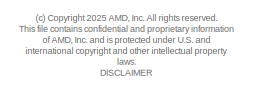
[diagram: root canvas - part 1/3, top left region]
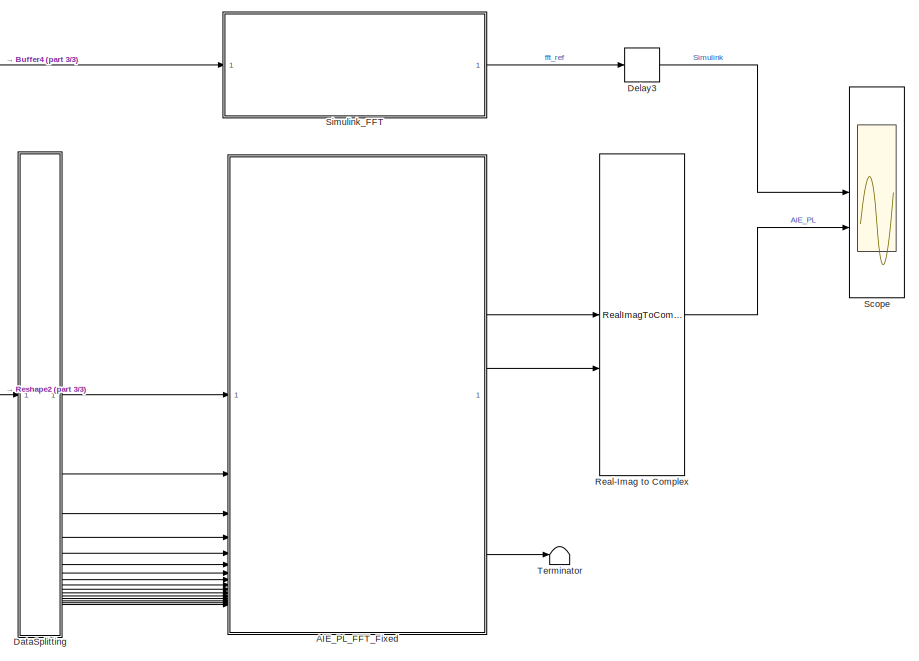
[diagram: root canvas - part 2/3, right side, full height]
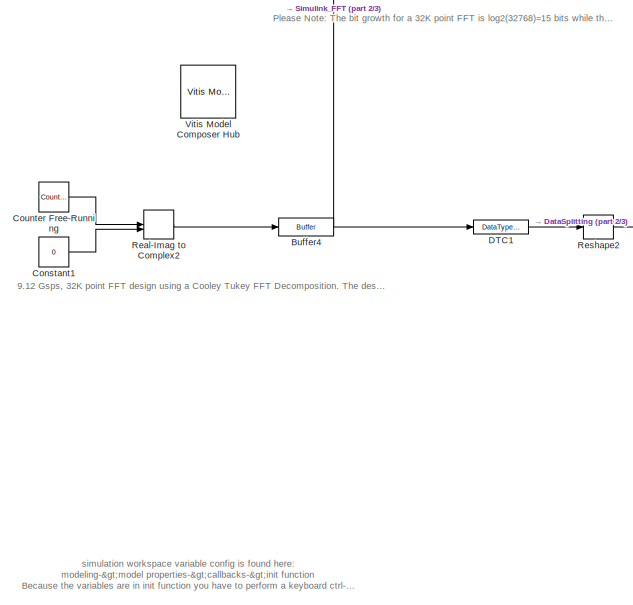
[diagram: root canvas - part 3/3, center side, full height]
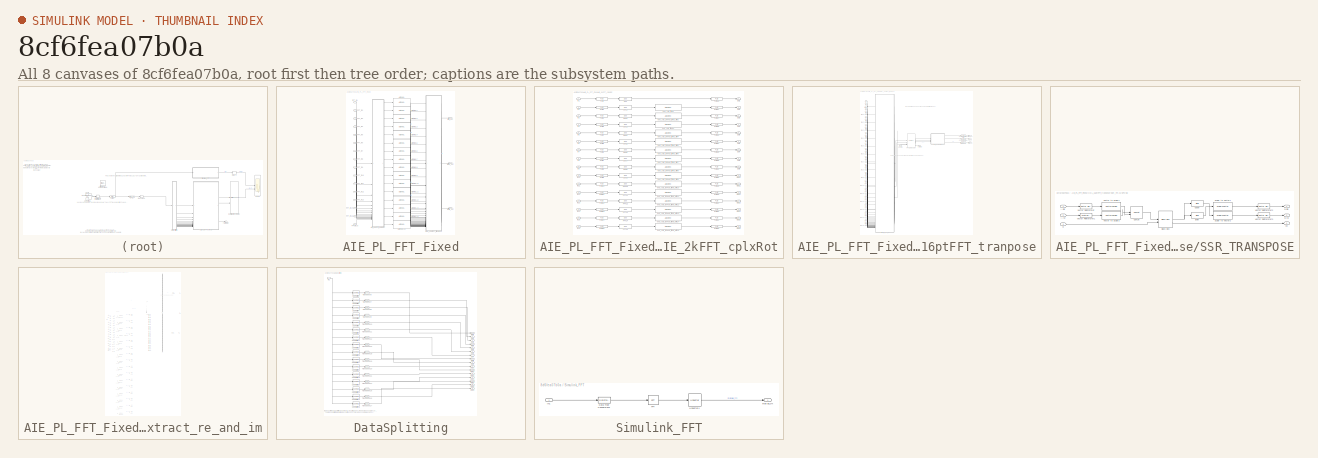
[diagram: thumbnail index - all 8 canvases of the model, root first then tree order]
MODEL slx_8cf6fea07b0a
KIND model
CONFIG AbsTol = auto
CONFIG EnableMultiTasking = off
CONFIG FixedStep = auto
CONFIG InitFcn = clk_freq = 570e6; % PL clock frequency\nsample_period = 1/(570e6*16); % 570Msps*16parallel paths\nN=32768; % fft point size\nbinw=(1/sample_period) / 2*N; % bin width\n\nbin_freq = 2*pi*11*binw+pi*binw; % sin, cos freq centering per channel\n\n% for transpose block\nDATA_WIDTH=16;\nSSR=16;\nM=16;\nN1=N/M;\nMEM_STYLE=4; % MEM OPTIONS: 4 - ULTRA, 0 - AUTO, 1 - BRAM, 5 - MIXED
CONFIG MaxStep = auto
CONFIG MinStep = auto
CONFIG PreLoadFcn = clk_freq = 570e6; % PL clock frequency\nsample_period = 1/(570e6*16); % 570Msps*16parallel paths\nN=32768; % fft point size\nbinw=(1/sample_period) / 2*N; % bin width\n\nbin_freq = 2*pi*11*binw+pi*binw; % sin, cos freq centering per channel\n\n% for transpose block\nDATA_WIDTH=16;\nSSR=16;\nM=16;\nN1=N/M;\nMEM_STYLE=4; % MEM OPTIONS: 4 - ULTRA, 0 - AUTO, 1 - BRAM, 5 - MIXED
CONFIG RelTol = 1e-3
CONFIG SampleTimeConstraint = Unconstrained
CONFIG SolverName = VariableStepAuto
CONFIG StartTime = 0.0
CONFIG StopTime = sample_period*N*5
BLOCK [SubSystem] AIE_PL_FFT_Fixed
BLOCK [Reference] AIE_PL_FFT_Fixed/AIE to HDL  REF=aieUtilities/AIE to HDL
  SourceBlock = aieUtilities/AIE to HDL
  SourceType = AIE to HDL
BLOCK [Reference] AIE_PL_FFT_Fixed/AIE to HDL1  REF=aieUtilities/AIE to HDL
  SourceBlock = aieUtilities/AIE to HDL
  SourceType = AIE to HDL
BLOCK [Reference] AIE_PL_FFT_Fixed/AIE to HDL10  REF=aieUtilities/AIE to HDL
  SourceBlock = aieUtilities/AIE to HDL
  SourceType = AIE to HDL
BLOCK [Reference] AIE_PL_FFT_Fixed/AIE to HDL11  REF=aieUtilities/AIE to HDL
  SourceBlock = aieUtilities/AIE to HDL
  SourceType = AIE to HDL
BLOCK [Reference] AIE_PL_FFT_Fixed/AIE to HDL12  REF=aieUtilities/AIE to HDL
  SourceBlock = aieUtilities/AIE to HDL
  SourceType = AIE to HDL
BLOCK [Reference] AIE_PL_FFT_Fixed/AIE to HDL13  REF=aieUtilities/AIE to HDL
  SourceBlock = aieUtilities/AIE to HDL
  SourceType = AIE to HDL
BLOCK [Reference] AIE_PL_FFT_Fixed/AIE to HDL14  REF=aieUtilities/AIE to HDL
  SourceBlock = aieUtilities/AIE to HDL
  SourceType = AIE to HDL
BLOCK [Reference] AIE_PL_FFT_Fixed/AIE to HDL15  REF=aieUtilities/AIE to HDL
  SourceBlock = aieUtilities/AIE to HDL
  SourceType = AIE to HDL
BLOCK [Reference] AIE_PL_FFT_Fixed/AIE to HDL2  REF=aieUtilities/AIE to HDL
  SourceBlock = aieUtilities/AIE to HDL
  SourceType = AIE to HDL
BLOCK [Reference] AIE_PL_FFT_Fixed/AIE to HDL3  REF=aieUtilities/AIE to HDL
  SourceBlock = aieUtilities/AIE to HDL
  SourceType = AIE to HDL
BLOCK [Reference] AIE_PL_FFT_Fixed/AIE to HDL4  REF=aieUtilities/AIE to HDL
  SourceBlock = aieUtilities/AIE to HDL
  SourceType = AIE to HDL
BLOCK [Reference] AIE_PL_FFT_Fixed/AIE to HDL5  REF=aieUtilities/AIE to HDL
  SourceBlock = aieUtilities/AIE to HDL
  SourceType = AIE to HDL
BLOCK [Reference] AIE_PL_FFT_Fixed/AIE to HDL6  REF=aieUtilities/AIE to HDL
  SourceBlock = aieUtilities/AIE to HDL
  SourceType = AIE to HDL
BLOCK [Reference] AIE_PL_FFT_Fixed/AIE to HDL7  REF=aieUtilities/AIE to HDL
  SourceBlock = aieUtilities/AIE to HDL
  SourceType = AIE to HDL
BLOCK [Reference] AIE_PL_FFT_Fixed/AIE to HDL8  REF=aieUtilities/AIE to HDL
  SourceBlock = aieUtilities/AIE to HDL
  SourceType = AIE to HDL
BLOCK [Reference] AIE_PL_FFT_Fixed/AIE to HDL9  REF=aieUtilities/AIE to HDL
  SourceBlock = aieUtilities/AIE to HDL
  SourceType = AIE to HDL
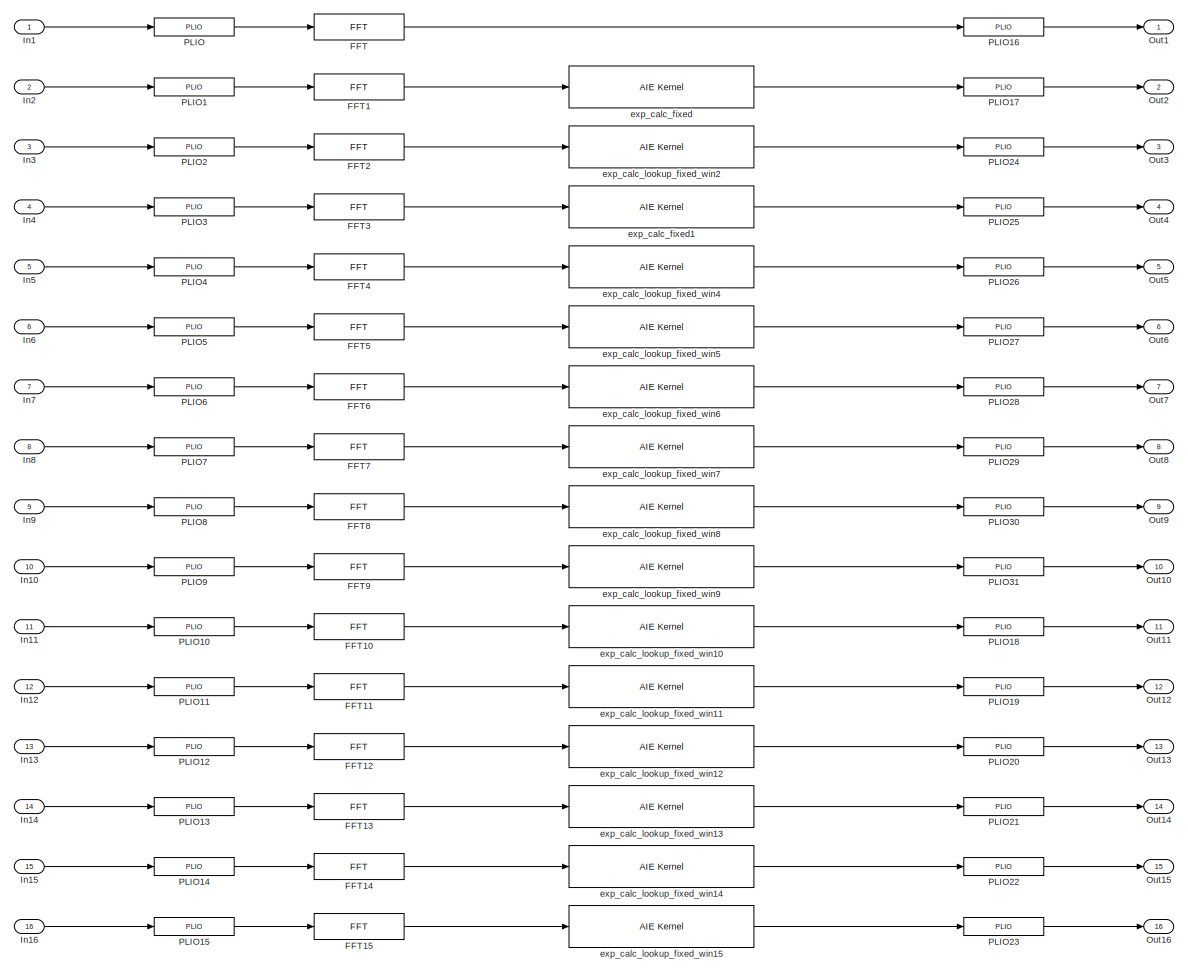
[diagram: AIE_PL_FFT_Fixed/AIE_2kFFT_cplxRot - part 1/1, most of the canvas]
BLOCK [SubSystem] AIE_PL_FFT_Fixed/AIE_2kFFT_cplxRot
BLOCK [Reference] AIE_PL_FFT_Fixed/AIE_2kFFT_cplxRot/FFT  REF=aieDSP/FFT
  SourceBlock = aieDSP/FFT
  SourceType = FFT
BLOCK [Reference] AIE_PL_FFT_Fixed/AIE_2kFFT_cplxRot/FFT1  REF=aieDSP/FFT
  SourceBlock = aieDSP/FFT
  SourceType = FFT
BLOCK [Reference] AIE_PL_FFT_Fixed/AIE_2kFFT_cplxRot/FFT10  REF=aieDSP/FFT
  SourceBlock = aieDSP/FFT
  SourceType = FFT
BLOCK [Reference] AIE_PL_FFT_Fixed/AIE_2kFFT_cplxRot/FFT11  REF=aieDSP/FFT
  SourceBlock = aieDSP/FFT
  SourceType = FFT
BLOCK [Reference] AIE_PL_FFT_Fixed/AIE_2kFFT_cplxRot/FFT12  REF=aieDSP/FFT
  SourceBlock = aieDSP/FFT
  SourceType = FFT
BLOCK [Reference] AIE_PL_FFT_Fixed/AIE_2kFFT_cplxRot/FFT13  REF=aieDSP/FFT
  SourceBlock = aieDSP/FFT
  SourceType = FFT
BLOCK [Reference] AIE_PL_FFT_Fixed/AIE_2kFFT_cplxRot/FFT14  REF=aieDSP/FFT
  SourceBlock = aieDSP/FFT
  SourceType = FFT
BLOCK [Reference] AIE_PL_FFT_Fixed/AIE_2kFFT_cplxRot/FFT15  REF=aieDSP/FFT
  SourceBlock = aieDSP/FFT
  SourceType = FFT
BLOCK [Reference] AIE_PL_FFT_Fixed/AIE_2kFFT_cplxRot/FFT2  REF=aieDSP/FFT
  SourceBlock = aieDSP/FFT
  SourceType = FFT
BLOCK [Reference] AIE_PL_FFT_Fixed/AIE_2kFFT_cplxRot/FFT3  REF=aieDSP/FFT
  SourceBlock = aieDSP/FFT
  SourceType = FFT
BLOCK [Reference] AIE_PL_FFT_Fixed/AIE_2kFFT_cplxRot/FFT4  REF=aieDSP/FFT
  SourceBlock = aieDSP/FFT
  SourceType = FFT
BLOCK [Reference] AIE_PL_FFT_Fixed/AIE_2kFFT_cplxRot/FFT5  REF=aieDSP/FFT
  SourceBlock = aieDSP/FFT
  SourceType = FFT
BLOCK [Reference] AIE_PL_FFT_Fixed/AIE_2kFFT_cplxRot/FFT6  REF=aieDSP/FFT
  SourceBlock = aieDSP/FFT
  SourceType = FFT
BLOCK [Reference] AIE_PL_FFT_Fixed/AIE_2kFFT_cplxRot/FFT7  REF=aieDSP/FFT
  SourceBlock = aieDSP/FFT
  SourceType = FFT
BLOCK [Reference] AIE_PL_FFT_Fixed/AIE_2kFFT_cplxRot/FFT8  REF=aieDSP/FFT
  SourceBlock = aieDSP/FFT
  SourceType = FFT
BLOCK [Reference] AIE_PL_FFT_Fixed/AIE_2kFFT_cplxRot/FFT9  REF=aieDSP/FFT
  SourceBlock = aieDSP/FFT
  SourceType = FFT
BLOCK [Inport] AIE_PL_FFT_Fixed/AIE_2kFFT_cplxRot/In1
BLOCK [Inport] AIE_PL_FFT_Fixed/AIE_2kFFT_cplxRot/In10
  Port = 10
BLOCK [Inport] AIE_PL_FFT_Fixed/AIE_2kFFT_cplxRot/In11
  Port = 11
BLOCK [Inport] AIE_PL_FFT_Fixed/AIE_2kFFT_cplxRot/In12
  Port = 12
BLOCK [Inport] AIE_PL_FFT_Fixed/AIE_2kFFT_cplxRot/In13
  Port = 13
BLOCK [Inport] AIE_PL_FFT_Fixed/AIE_2kFFT_cplxRot/In14
  Port = 14
BLOCK [Inport] AIE_PL_FFT_Fixed/AIE_2kFFT_cplxRot/In15
  Port = 15
BLOCK [Inport] AIE_PL_FFT_Fixed/AIE_2kFFT_cplxRot/In16
  Port = 16
BLOCK [Inport] AIE_PL_FFT_Fixed/AIE_2kFFT_cplxRot/In2
  Port = 2
BLOCK [Inport] AIE_PL_FFT_Fixed/AIE_2kFFT_cplxRot/In3
  Port = 3
BLOCK [Inport] AIE_PL_FFT_Fixed/AIE_2kFFT_cplxRot/In4
  Port = 4
BLOCK [Inport] AIE_PL_FFT_Fixed/AIE_2kFFT_cplxRot/In5
  Port = 5
BLOCK [Inport] AIE_PL_FFT_Fixed/AIE_2kFFT_cplxRot/In6
  Port = 6
BLOCK [Inport] AIE_PL_FFT_Fixed/AIE_2kFFT_cplxRot/In7
  Port = 7
BLOCK [Inport] AIE_PL_FFT_Fixed/AIE_2kFFT_cplxRot/In8
  Port = 8
BLOCK [Inport] AIE_PL_FFT_Fixed/AIE_2kFFT_cplxRot/In9
  Port = 9
BLOCK [Outport] AIE_PL_FFT_Fixed/AIE_2kFFT_cplxRot/Out1
BLOCK [Outport] AIE_PL_FFT_Fixed/AIE_2kFFT_cplxRot/Out10
  Port = 10
BLOCK [Outport] AIE_PL_FFT_Fixed/AIE_2kFFT_cplxRot/Out11
  Port = 11
BLOCK [Outport] AIE_PL_FFT_Fixed/AIE_2kFFT_cplxRot/Out12
  Port = 12
BLOCK [Outport] AIE_PL_FFT_Fixed/AIE_2kFFT_cplxRot/Out13
  Port = 13
BLOCK [Outport] AIE_PL_FFT_Fixed/AIE_2kFFT_cplxRot/Out14
  Port = 14
BLOCK [Outport] AIE_PL_FFT_Fixed/AIE_2kFFT_cplxRot/Out15
  Port = 15
BLOCK [Outport] AIE_PL_FFT_Fixed/AIE_2kFFT_cplxRot/Out16
  Port = 16
BLOCK [Outport] AIE_PL_FFT_Fixed/AIE_2kFFT_cplxRot/Out2
  Port = 2
BLOCK [Outport] AIE_PL_FFT_Fixed/AIE_2kFFT_cplxRot/Out3
  Port = 3
BLOCK [Outport] AIE_PL_FFT_Fixed/AIE_2kFFT_cplxRot/Out4
  Port = 4
BLOCK [Outport] AIE_PL_FFT_Fixed/AIE_2kFFT_cplxRot/Out5
  Port = 5
BLOCK [Outport] AIE_PL_FFT_Fixed/AIE_2kFFT_cplxRot/Out6
  Port = 6
BLOCK [Outport] AIE_PL_FFT_Fixed/AIE_2kFFT_cplxRot/Out7
  Port = 7
BLOCK [Outport] AIE_PL_FFT_Fixed/AIE_2kFFT_cplxRot/Out8
  Port = 8
BLOCK [Outport] AIE_PL_FFT_Fixed/AIE_2kFFT_cplxRot/Out9
  Port = 9
BLOCK [Reference] AIE_PL_FFT_Fixed/AIE_2kFFT_cplxRot/PLIO  REF=aieBasic/PLIO
  SourceBlock = aieBasic/PLIO
  SourceType = PLIO
BLOCK [Reference] AIE_PL_FFT_Fixed/AIE_2kFFT_cplxRot/PLIO1  REF=aieBasic/PLIO
  SourceBlock = aieBasic/PLIO
  SourceType = PLIO
BLOCK [Reference] AIE_PL_FFT_Fixed/AIE_2kFFT_cplxRot/PLIO10  REF=aieBasic/PLIO
  SourceBlock = aieBasic/PLIO
  SourceType = PLIO
BLOCK [Reference] AIE_PL_FFT_Fixed/AIE_2kFFT_cplxRot/PLIO11  REF=aieBasic/PLIO
  SourceBlock = aieBasic/PLIO
  SourceType = PLIO
BLOCK [Reference] AIE_PL_FFT_Fixed/AIE_2kFFT_cplxRot/PLIO12  REF=aieBasic/PLIO
  SourceBlock = aieBasic/PLIO
  SourceType = PLIO
BLOCK [Reference] AIE_PL_FFT_Fixed/AIE_2kFFT_cplxRot/PLIO13  REF=aieBasic/PLIO
  SourceBlock = aieBasic/PLIO
  SourceType = PLIO
BLOCK [Reference] AIE_PL_FFT_Fixed/AIE_2kFFT_cplxRot/PLIO14  REF=aieBasic/PLIO
  SourceBlock = aieBasic/PLIO
  SourceType = PLIO
BLOCK [Reference] AIE_PL_FFT_Fixed/AIE_2kFFT_cplxRot/PLIO15  REF=aieBasic/PLIO
  SourceBlock = aieBasic/PLIO
  SourceType = PLIO
BLOCK [Reference] AIE_PL_FFT_Fixed/AIE_2kFFT_cplxRot/PLIO16  REF=aieBasic/PLIO
  SourceBlock = aieBasic/PLIO
  SourceType = PLIO
BLOCK [Reference] AIE_PL_FFT_Fixed/AIE_2kFFT_cplxRot/PLIO17  REF=aieBasic/PLIO
  SourceBlock = aieBasic/PLIO
  SourceType = PLIO
BLOCK [Reference] AIE_PL_FFT_Fixed/AIE_2kFFT_cplxRot/PLIO18  REF=aieBasic/PLIO
  SourceBlock = aieBasic/PLIO
  SourceType = PLIO
BLOCK [Reference] AIE_PL_FFT_Fixed/AIE_2kFFT_cplxRot/PLIO19  REF=aieBasic/PLIO
  SourceBlock = aieBasic/PLIO
  SourceType = PLIO
BLOCK [Reference] AIE_PL_FFT_Fixed/AIE_2kFFT_cplxRot/PLIO2  REF=aieBasic/PLIO
  SourceBlock = aieBasic/PLIO
  SourceType = PLIO
BLOCK [Reference] AIE_PL_FFT_Fixed/AIE_2kFFT_cplxRot/PLIO20  REF=aieBasic/PLIO
  SourceBlock = aieBasic/PLIO
  SourceType = PLIO
BLOCK [Reference] AIE_PL_FFT_Fixed/AIE_2kFFT_cplxRot/PLIO21  REF=aieBasic/PLIO
  SourceBlock = aieBasic/PLIO
  SourceType = PLIO
BLOCK [Reference] AIE_PL_FFT_Fixed/AIE_2kFFT_cplxRot/PLIO22  REF=aieBasic/PLIO
  SourceBlock = aieBasic/PLIO
  SourceType = PLIO
BLOCK [Reference] AIE_PL_FFT_Fixed/AIE_2kFFT_cplxRot/PLIO23  REF=aieBasic/PLIO
  SourceBlock = aieBasic/PLIO
  SourceType = PLIO
BLOCK [Reference] AIE_PL_FFT_Fixed/AIE_2kFFT_cplxRot/PLIO24  REF=aieBasic/PLIO
  SourceBlock = aieBasic/PLIO
  SourceType = PLIO
BLOCK [Reference] AIE_PL_FFT_Fixed/AIE_2kFFT_cplxRot/PLIO25  REF=aieBasic/PLIO
  SourceBlock = aieBasic/PLIO
  SourceType = PLIO
BLOCK [Reference] AIE_PL_FFT_Fixed/AIE_2kFFT_cplxRot/PLIO26  REF=aieBasic/PLIO
  SourceBlock = aieBasic/PLIO
  SourceType = PLIO
BLOCK [Reference] AIE_PL_FFT_Fixed/AIE_2kFFT_cplxRot/PLIO27  REF=aieBasic/PLIO
  SourceBlock = aieBasic/PLIO
  SourceType = PLIO
BLOCK [Reference] AIE_PL_FFT_Fixed/AIE_2kFFT_cplxRot/PLIO28  REF=aieBasic/PLIO
  SourceBlock = aieBasic/PLIO
  SourceType = PLIO
BLOCK [Reference] AIE_PL_FFT_Fixed/AIE_2kFFT_cplxRot/PLIO29  REF=aieBasic/PLIO
  SourceBlock = aieBasic/PLIO
  SourceType = PLIO
BLOCK [Reference] AIE_PL_FFT_Fixed/AIE_2kFFT_cplxRot/PLIO3  REF=aieBasic/PLIO
  SourceBlock = aieBasic/PLIO
  SourceType = PLIO
BLOCK [Reference] AIE_PL_FFT_Fixed/AIE_2kFFT_cplxRot/PLIO30  REF=aieBasic/PLIO
  SourceBlock = aieBasic/PLIO
  SourceType = PLIO
BLOCK [Reference] AIE_PL_FFT_Fixed/AIE_2kFFT_cplxRot/PLIO31  REF=aieBasic/PLIO
  SourceBlock = aieBasic/PLIO
  SourceType = PLIO
BLOCK [Reference] AIE_PL_FFT_Fixed/AIE_2kFFT_cplxRot/PLIO4  REF=aieBasic/PLIO
  SourceBlock = aieBasic/PLIO
  SourceType = PLIO
BLOCK [Reference] AIE_PL_FFT_Fixed/AIE_2kFFT_cplxRot/PLIO5  REF=aieBasic/PLIO
  SourceBlock = aieBasic/PLIO
  SourceType = PLIO
BLOCK [Reference] AIE_PL_FFT_Fixed/AIE_2kFFT_cplxRot/PLIO6  REF=aieBasic/PLIO
  SourceBlock = aieBasic/PLIO
  SourceType = PLIO
BLOCK [Reference] AIE_PL_FFT_Fixed/AIE_2kFFT_cplxRot/PLIO7  REF=aieBasic/PLIO
  SourceBlock = aieBasic/PLIO
  SourceType = PLIO
BLOCK [Reference] AIE_PL_FFT_Fixed/AIE_2kFFT_cplxRot/PLIO8  REF=aieBasic/PLIO
  SourceBlock = aieBasic/PLIO
  SourceType = PLIO
BLOCK [Reference] AIE_PL_FFT_Fixed/AIE_2kFFT_cplxRot/PLIO9  REF=aieBasic/PLIO
  SourceBlock = aieBasic/PLIO
  SourceType = PLIO
BLOCK [Reference] AIE_PL_FFT_Fixed/AIE_2kFFT_cplxRot/exp_calc_fixed  REF=aieBasic/AIE Kernel
  SourceBlock = aieBasic/AIE Kernel
  SourceType = AIE Kernel Function
BLOCK [Reference] AIE_PL_FFT_Fixed/AIE_2kFFT_cplxRot/exp_calc_fixed1  REF=aieBasic/AIE Kernel
  SourceBlock = aieBasic/AIE Kernel
  SourceType = AIE Kernel Function
BLOCK [Reference] AIE_PL_FFT_Fixed/AIE_2kFFT_cplxRot/exp_calc_lookup_fixed_win10  REF=aieBasic/AIE Kernel
  SourceBlock = aieBasic/AIE Kernel
  SourceType = AIE Kernel Function
BLOCK [Reference] AIE_PL_FFT_Fixed/AIE_2kFFT_cplxRot/exp_calc_lookup_fixed_win11  REF=aieBasic/AIE Kernel
  SourceBlock = aieBasic/AIE Kernel
  SourceType = AIE Kernel Function
BLOCK [Reference] AIE_PL_FFT_Fixed/AIE_2kFFT_cplxRot/exp_calc_lookup_fixed_win12  REF=aieBasic/AIE Kernel
  SourceBlock = aieBasic/AIE Kernel
  SourceType = AIE Kernel Function
BLOCK [Reference] AIE_PL_FFT_Fixed/AIE_2kFFT_cplxRot/exp_calc_lookup_fixed_win13  REF=aieBasic/AIE Kernel
  SourceBlock = aieBasic/AIE Kernel
  SourceType = AIE Kernel Function
BLOCK [Reference] AIE_PL_FFT_Fixed/AIE_2kFFT_cplxRot/exp_calc_lookup_fixed_win14  REF=aieBasic/AIE Kernel
  SourceBlock = aieBasic/AIE Kernel
  SourceType = AIE Kernel Function
BLOCK [Reference] AIE_PL_FFT_Fixed/AIE_2kFFT_cplxRot/exp_calc_lookup_fixed_win15  REF=aieBasic/AIE Kernel
  SourceBlock = aieBasic/AIE Kernel
  SourceType = AIE Kernel Function
BLOCK [Reference] AIE_PL_FFT_Fixed/AIE_2kFFT_cplxRot/exp_calc_lookup_fixed_win2  REF=aieBasic/AIE Kernel
  SourceBlock = aieBasic/AIE Kernel
  SourceType = AIE Kernel Function
BLOCK [Reference] AIE_PL_FFT_Fixed/AIE_2kFFT_cplxRot/exp_calc_lookup_fixed_win4  REF=aieBasic/AIE Kernel
  SourceBlock = aieBasic/AIE Kernel
  SourceType = AIE Kernel Function
BLOCK [Reference] AIE_PL_FFT_Fixed/AIE_2kFFT_cplxRot/exp_calc_lookup_fixed_win5  REF=aieBasic/AIE Kernel
  SourceBlock = aieBasic/AIE Kernel
  SourceType = AIE Kernel Function
BLOCK [Reference] AIE_PL_FFT_Fixed/AIE_2kFFT_cplxRot/exp_calc_lookup_fixed_win6  REF=aieBasic/AIE Kernel
  SourceBlock = aieBasic/AIE Kernel
  SourceType = AIE Kernel Function
BLOCK [Reference] AIE_PL_FFT_Fixed/AIE_2kFFT_cplxRot/exp_calc_lookup_fixed_win7  REF=aieBasic/AIE Kernel
  SourceBlock = aieBasic/AIE Kernel
  SourceType = AIE Kernel Function
BLOCK [Reference] AIE_PL_FFT_Fixed/AIE_2kFFT_cplxRot/exp_calc_lookup_fixed_win8  REF=aieBasic/AIE Kernel
  SourceBlock = aieBasic/AIE Kernel
  SourceType = AIE Kernel Function
BLOCK [Reference] AIE_PL_FFT_Fixed/AIE_2kFFT_cplxRot/exp_calc_lookup_fixed_win9  REF=aieBasic/AIE Kernel
  SourceBlock = aieBasic/AIE Kernel
  SourceType = AIE Kernel Function
BLOCK [Inport] AIE_PL_FFT_Fixed/FFT_in1
BLOCK [Inport] AIE_PL_FFT_Fixed/FFT_in10
  Port = 10
BLOCK [Inport] AIE_PL_FFT_Fixed/FFT_in11
  Port = 11
BLOCK [Inport] AIE_PL_FFT_Fixed/FFT_in12
  Port = 12
BLOCK [Inport] AIE_PL_FFT_Fixed/FFT_in13
  Port = 13
BLOCK [Inport] AIE_PL_FFT_Fixed/FFT_in14
  Port = 14
BLOCK [Inport] AIE_PL_FFT_Fixed/FFT_in15
  Port = 15
BLOCK [Inport] AIE_PL_FFT_Fixed/FFT_in16
  Port = 16
BLOCK [Inport] AIE_PL_FFT_Fixed/FFT_in2
  Port = 2
BLOCK [Inport] AIE_PL_FFT_Fixed/FFT_in3
  Port = 3
BLOCK [Inport] AIE_PL_FFT_Fixed/FFT_in4
  Port = 4
BLOCK [Inport] AIE_PL_FFT_Fixed/FFT_in5
  Port = 5
BLOCK [Inport] AIE_PL_FFT_Fixed/FFT_in6
  Port = 6
BLOCK [Inport] AIE_PL_FFT_Fixed/FFT_in7
  Port = 7
BLOCK [Inport] AIE_PL_FFT_Fixed/FFT_in8
  Port = 8
BLOCK [Inport] AIE_PL_FFT_Fixed/FFT_in9
  Port = 9
BLOCK [SubSystem] AIE_PL_FFT_Fixed/HDL_16ptFFT_tranpose
  PortSchema = {"entries":[{"content":{"sides":[{"content":{"connectorIds":["In1","In2","Out4","In3","In4","Out5","In5","In6","Out6","In7","In8","Out7","In9","In10","Out8","In11","In12","Out9","In13","In14","Out10","In15","In16","Out11","In17","In18","Out12","In19","In20","Out13","In21","In22","Out14","In23","In24","Out15","In25","In26","Out16","In27","In28","Out17","In29","In30","Out18","In31","In32","Out19"]},...<+567ch>
BLOCK [Reference] AIE_PL_FFT_Fixed/HDL_16ptFFT_tranpose/Constant  REF=hdlBasic/Constant
  SourceBlock = hdlBasic/Constant
  SourceType = Constant Block Block
BLOCK [Reference] AIE_PL_FFT_Fixed/HDL_16ptFFT_tranpose/FFT_SSR16_16pt  REF=hdlSSR/Vector FFT
  SourceBlock = hdlSSR/Vector FFT
  SourceType = Xilinx Vector FFT Block
BLOCK [Reference] AIE_PL_FFT_Fixed/HDL_16ptFFT_tranpose/Gateway Out  REF=hdlBasic/Gateway Out
  SourceBlock = hdlBasic/Gateway Out
  SourceType = Gateway Out Block
BLOCK [SubSystem] AIE_PL_FFT_Fixed/HDL_16ptFFT_tranpose/SSR_TRANSPOSE
BLOCK [Outport] AIE_PL_FFT_Fixed/HDL_16ptFFT_tranpose/SSR_TRANSPOSE/ O.IM
  Port = 2
BLOCK [Outport] AIE_PL_FFT_Fixed/HDL_16ptFFT_tranpose/SSR_TRANSPOSE/ O.RE
BLOCK [Outport] AIE_PL_FFT_Fixed/HDL_16ptFFT_tranpose/SSR_TRANSPOSE/ VO
  Port = 3
BLOCK [Reference] AIE_PL_FFT_Fixed/HDL_16ptFFT_tranpose/SSR_TRANSPOSE/Black Box  REF=hdlBasic/Black Box
  SourceBlock = hdlBasic/Black Box
  SourceType = Black Box Block
BLOCK [Reference] AIE_PL_FFT_Fixed/HDL_16ptFFT_tranpose/SSR_TRANSPOSE/Concat  REF=hdlBasic/Concat
  SourceBlock = hdlBasic/Concat
  SourceType = Bus Concatenator Block
BLOCK [Inport] AIE_PL_FFT_Fixed/HDL_16ptFFT_tranpose/SSR_TRANSPOSE/I.IM 
  Port = 2
BLOCK [Inport] AIE_PL_FFT_Fixed/HDL_16ptFFT_tranpose/SSR_TRANSPOSE/I.RE 
BLOCK [Reference] AIE_PL_FFT_Fixed/HDL_16ptFFT_tranpose/SSR_TRANSPOSE/Scalar to Vector1  REF=hdlSSR/Scalar2Vector
  SourceBlock = hdlSSR/Scalar2Vector
  SourceType = Xilinx Scalar2Vector Block
BLOCK [Reference] AIE_PL_FFT_Fixed/HDL_16ptFFT_tranpose/SSR_TRANSPOSE/Scalar to Vector2  REF=hdlSSR/Scalar2Vector
  SourceBlock = hdlSSR/Scalar2Vector
  SourceType = Xilinx Scalar2Vector Block
BLOCK [Inport] AIE_PL_FFT_Fixed/HDL_16ptFFT_tranpose/SSR_TRANSPOSE/VI 
  Port = 3
BLOCK [Reference] AIE_PL_FFT_Fixed/HDL_16ptFFT_tranpose/SSR_TRANSPOSE/Vector Reinterpret  REF=hdlSSR/Vector Reinterpret
  SourceBlock = hdlSSR/Vector Reinterpret
  SourceType = Xilinx Vector Type Reinterpreter Block
BLOCK [Reference] AIE_PL_FFT_Fixed/HDL_16ptFFT_tranpose/SSR_TRANSPOSE/Vector Reinterpret1  REF=hdlSSR/Vector Reinterpret
  SourceBlock = hdlSSR/Vector Reinterpret
  SourceType = Xilinx Vector Type Reinterpreter Block
BLOCK [Reference] AIE_PL_FFT_Fixed/HDL_16ptFFT_tranpose/SSR_TRANSPOSE/Vector Reinterpret2  REF=hdlSSR/Vector Reinterpret
  SourceBlock = hdlSSR/Vector Reinterpret
  SourceType = Xilinx Vector Type Reinterpreter Block
BLOCK [Reference] AIE_PL_FFT_Fixed/HDL_16ptFFT_tranpose/SSR_TRANSPOSE/Vector Reinterpret3  REF=hdlSSR/Vector Reinterpret
  SourceBlock = hdlSSR/Vector Reinterpret
  SourceType = Xilinx Vector Type Reinterpreter Block
BLOCK [Reference] AIE_PL_FFT_Fixed/HDL_16ptFFT_tranpose/SSR_TRANSPOSE/Vector to Scalar1  REF=hdlSSR/Vector2Scalar
  SourceBlock = hdlSSR/Vector2Scalar
  SourceType = Xilinx Vector2Scalar Block
BLOCK [Reference] AIE_PL_FFT_Fixed/HDL_16ptFFT_tranpose/SSR_TRANSPOSE/Vector to Scalar2  REF=hdlSSR/Vector2Scalar
  SourceBlock = hdlSSR/Vector2Scalar
  SourceType = Xilinx Vector2Scalar Block
BLOCK [Reference] AIE_PL_FFT_Fixed/HDL_16ptFFT_tranpose/SSR_TRANSPOSE/lower  REF=hdlBasic/Slice
  SourceBlock = hdlBasic/Slice
  SourceType = Bit Slice Extractor Block
BLOCK [Reference] AIE_PL_FFT_Fixed/HDL_16ptFFT_tranpose/SSR_TRANSPOSE/upper  REF=hdlBasic/Slice
  SourceBlock = hdlBasic/Slice
  SourceType = Bit Slice Extractor Block
BLOCK [Terminator] AIE_PL_FFT_Fixed/HDL_16ptFFT_tranpose/Terminator
BLOCK [Reference] AIE_PL_FFT_Fixed/HDL_16ptFFT_tranpose/Vector Real Gateway Out  REF=hdlSSR/Vector Real Gateway Out
  SourceBlock = hdlSSR/Vector Real Gateway Out
  SourceType = Xilinx Vector Gateway Out Block
BLOCK [Reference] AIE_PL_FFT_Fixed/HDL_16ptFFT_tranpose/Vector Real Gateway Out1  REF=hdlSSR/Vector Real Gateway Out
  SourceBlock = hdlSSR/Vector Real Gateway Out
  SourceType = Xilinx Vector Gateway Out Block
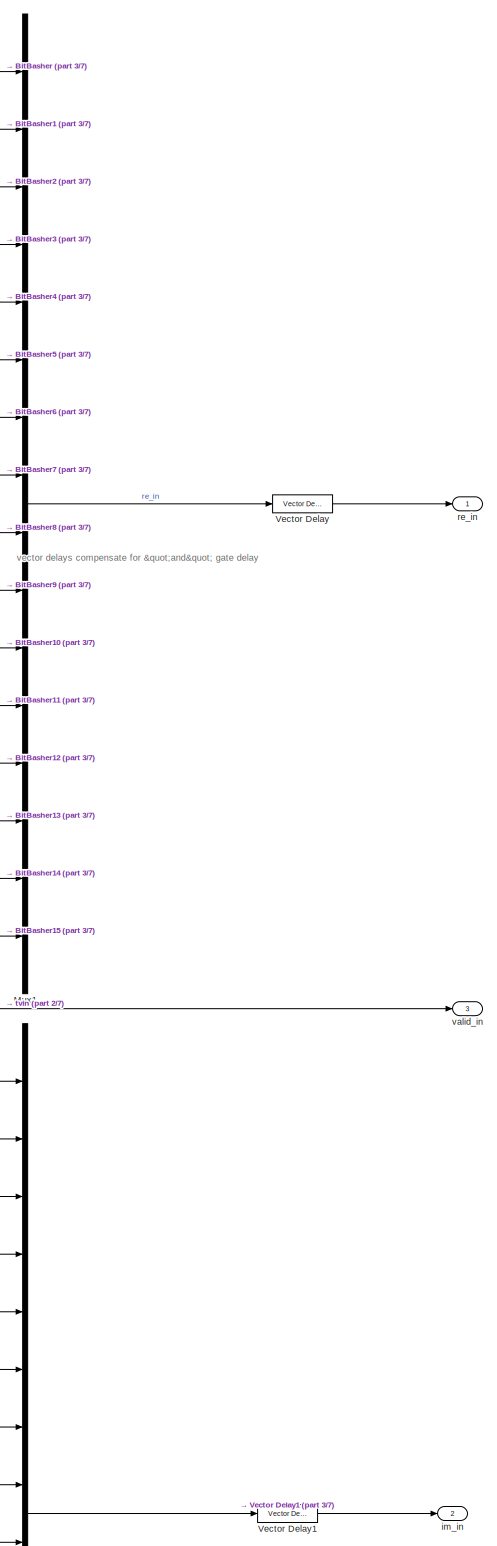
[diagram: AIE_PL_FFT_Fixed/HDL_16ptFFT_tranpose/extract_re_and_im - part 1/7, top right region]
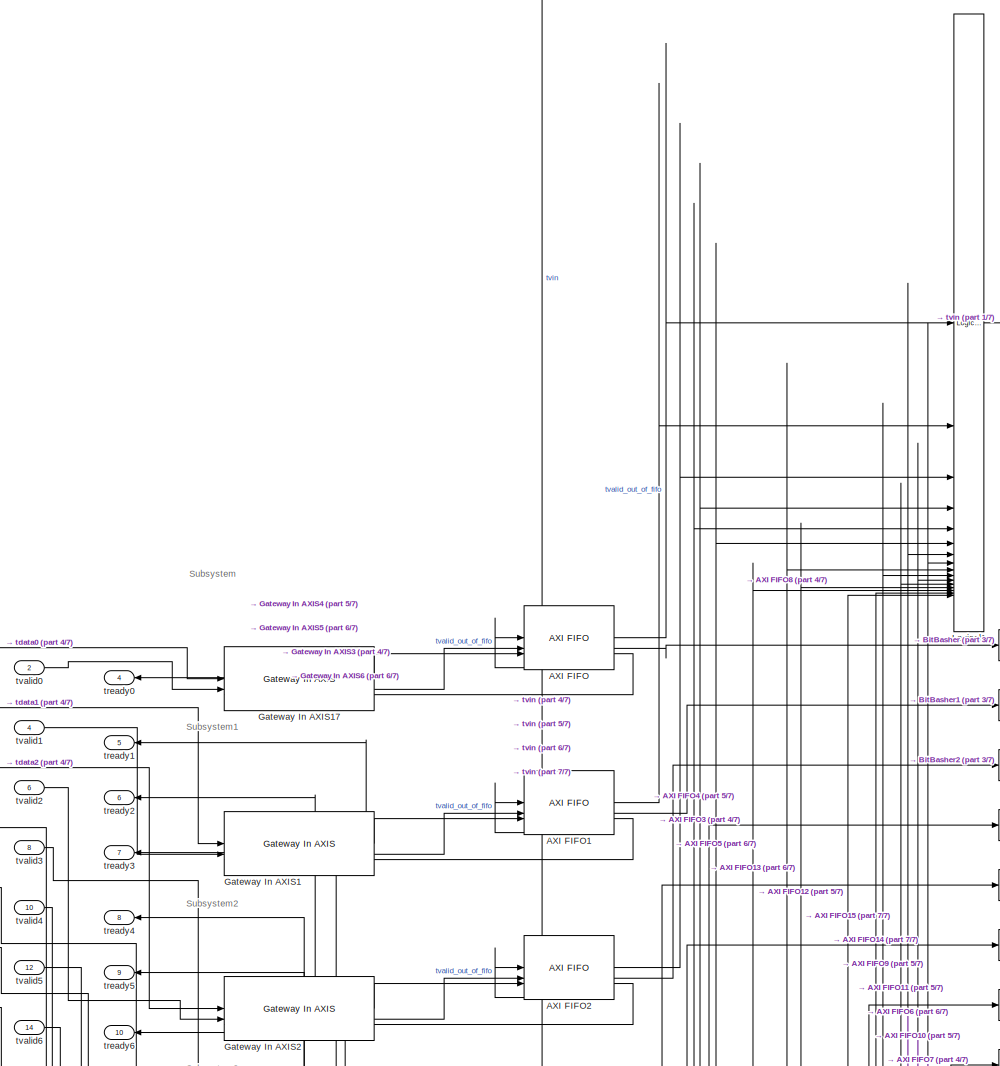
[diagram: AIE_PL_FFT_Fixed/HDL_16ptFFT_tranpose/extract_re_and_im - part 2/7, top left region]
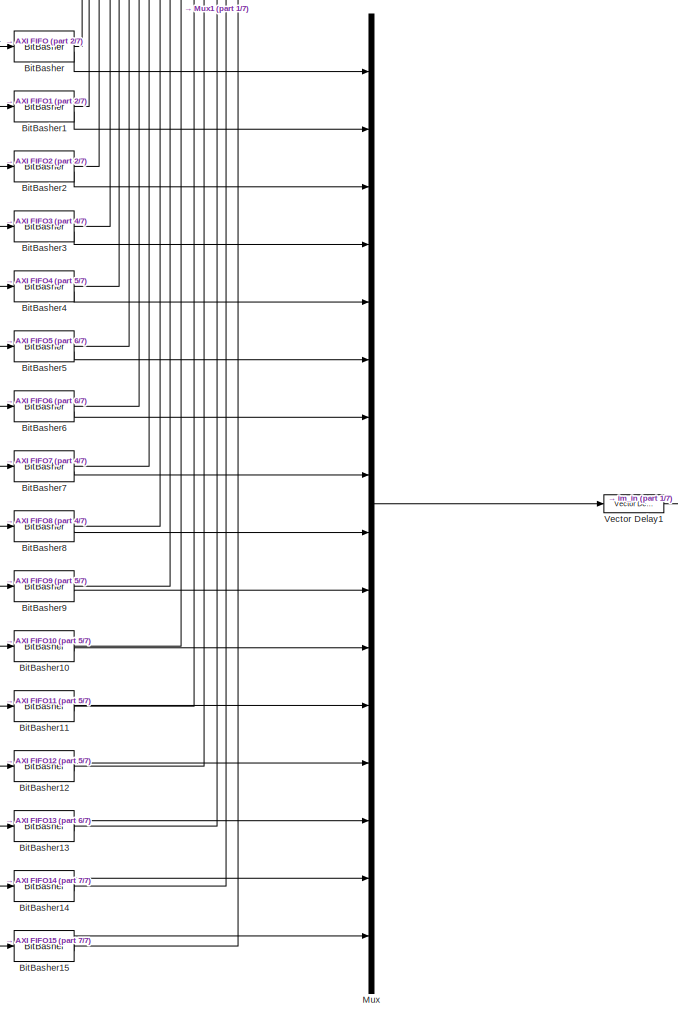
[diagram: AIE_PL_FFT_Fixed/HDL_16ptFFT_tranpose/extract_re_and_im - part 3/7, middle right region]
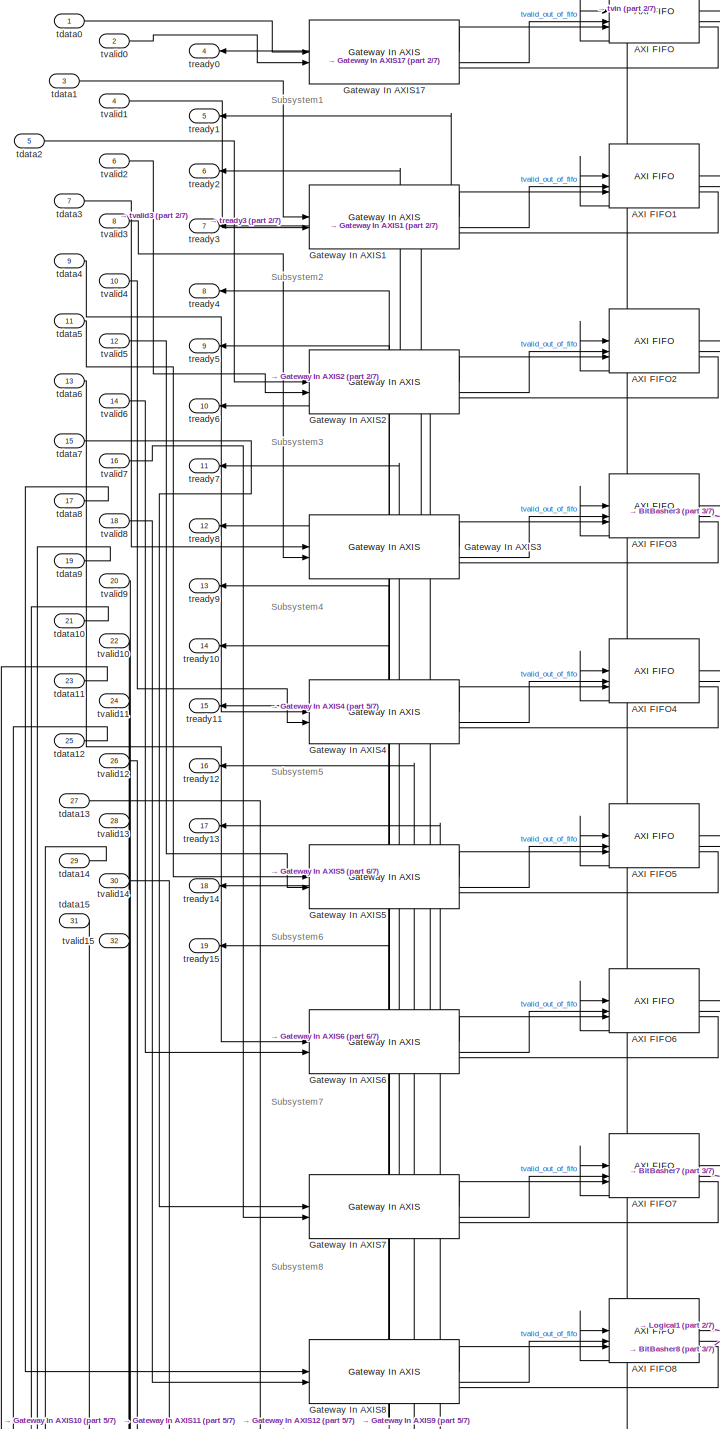
[diagram: AIE_PL_FFT_Fixed/HDL_16ptFFT_tranpose/extract_re_and_im - part 4/7, middle left region]
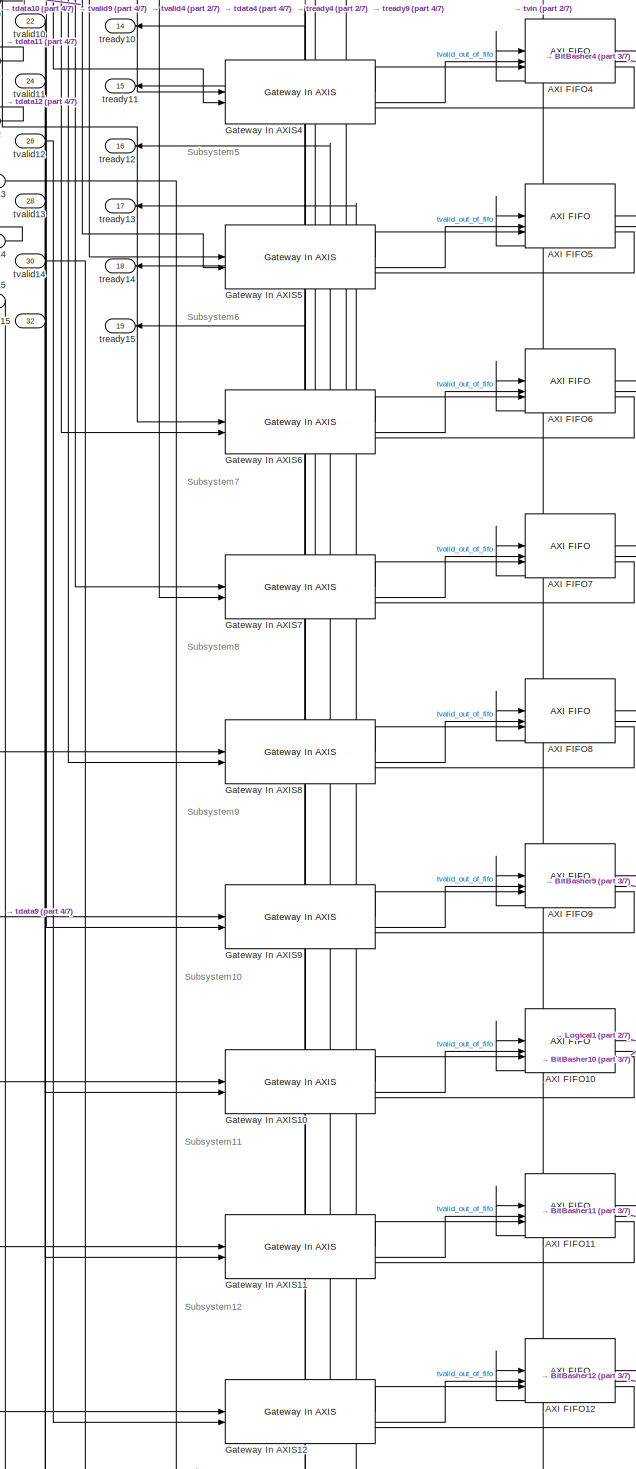
[diagram: AIE_PL_FFT_Fixed/HDL_16ptFFT_tranpose/extract_re_and_im - part 5/7, middle left region]
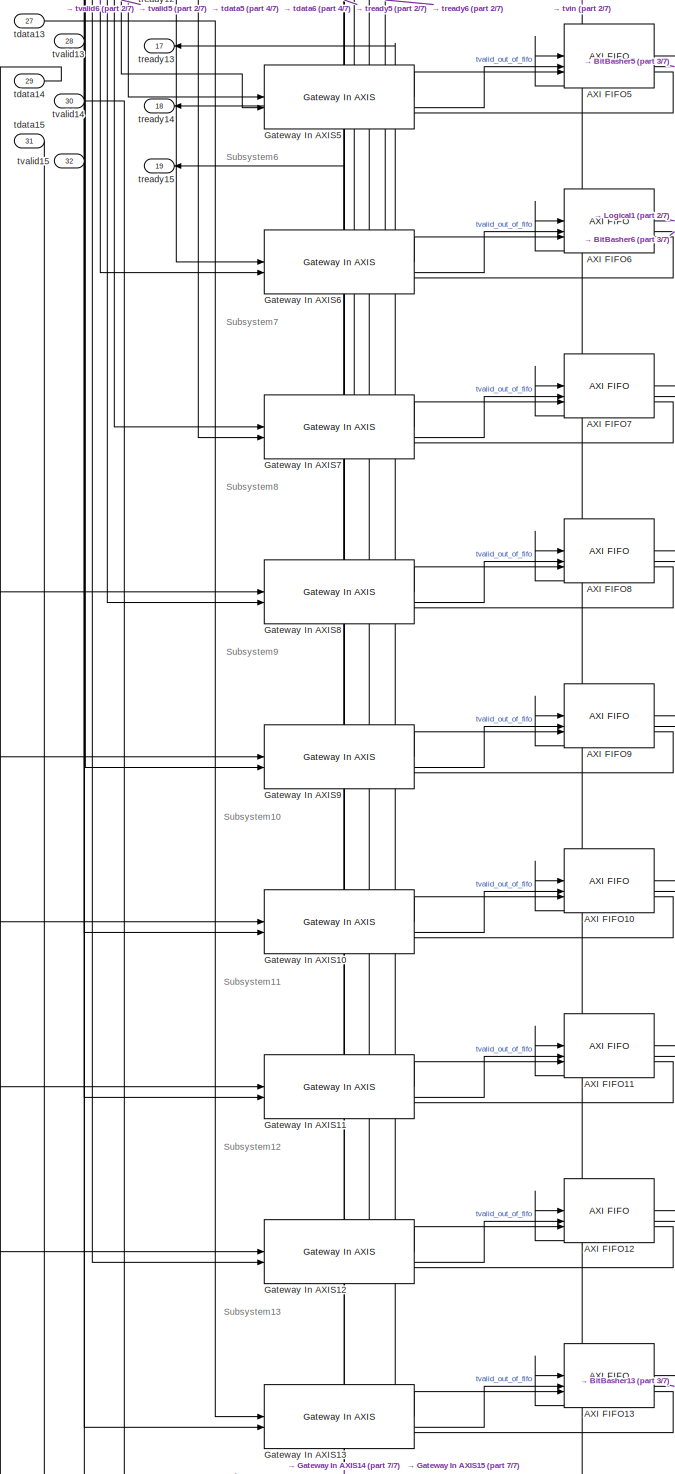
[diagram: AIE_PL_FFT_Fixed/HDL_16ptFFT_tranpose/extract_re_and_im - part 6/7, bottom left region]
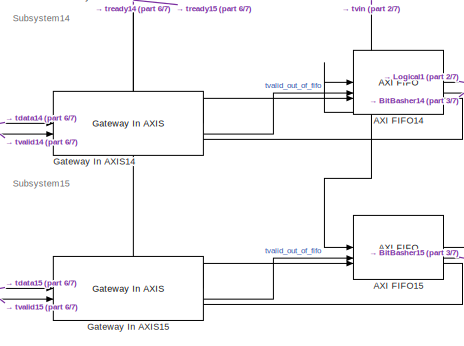
[diagram: AIE_PL_FFT_Fixed/HDL_16ptFFT_tranpose/extract_re_and_im - part 7/7, bottom left region]
BLOCK [SubSystem] AIE_PL_FFT_Fixed/HDL_16ptFFT_tranpose/extract_re_and_im
  PortSchema = {"entries":[{"content":{"sides":[{"content":{"connectorIds":["In1","In2","Out4","In3","In4","Out5","In5","In6","Out6","In7","In8","Out7","In9","In10","Out8","In11","In12","Out9","In13","In14","Out10","In15","In16","Out11","In17","In18","Out12","In19","In20","Out13","In21","In22","Out14","In23","In24","Out15","In25","In26","Out16","In27","In28","Out17","In29","In30","Out18","In31","In32","Out19"]},...<+567ch>
BLOCK [Reference] AIE_PL_FFT_Fixed/HDL_16ptFFT_tranpose/extract_re_and_im/AXI FIFO  REF=hdlBasic/AXI FIFO
  SourceBlock = hdlBasic/AXI FIFO
  SourceType = AXI FIFO Block Block
BLOCK [Reference] AIE_PL_FFT_Fixed/HDL_16ptFFT_tranpose/extract_re_and_im/AXI FIFO1  REF=hdlBasic/AXI FIFO
  SourceBlock = hdlBasic/AXI FIFO
  SourceType = AXI FIFO Block Block
BLOCK [Reference] AIE_PL_FFT_Fixed/HDL_16ptFFT_tranpose/extract_re_and_im/AXI FIFO10  REF=hdlBasic/AXI FIFO
  SourceBlock = hdlBasic/AXI FIFO
  SourceType = AXI FIFO Block Block
BLOCK [Reference] AIE_PL_FFT_Fixed/HDL_16ptFFT_tranpose/extract_re_and_im/AXI FIFO11  REF=hdlBasic/AXI FIFO
  SourceBlock = hdlBasic/AXI FIFO
  SourceType = AXI FIFO Block Block
BLOCK [Reference] AIE_PL_FFT_Fixed/HDL_16ptFFT_tranpose/extract_re_and_im/AXI FIFO12  REF=hdlBasic/AXI FIFO
  SourceBlock = hdlBasic/AXI FIFO
  SourceType = AXI FIFO Block Block
BLOCK [Reference] AIE_PL_FFT_Fixed/HDL_16ptFFT_tranpose/extract_re_and_im/AXI FIFO13  REF=hdlBasic/AXI FIFO
  SourceBlock = hdlBasic/AXI FIFO
  SourceType = AXI FIFO Block Block
BLOCK [Reference] AIE_PL_FFT_Fixed/HDL_16ptFFT_tranpose/extract_re_and_im/AXI FIFO14  REF=hdlBasic/AXI FIFO
  SourceBlock = hdlBasic/AXI FIFO
  SourceType = AXI FIFO Block Block
BLOCK [Reference] AIE_PL_FFT_Fixed/HDL_16ptFFT_tranpose/extract_re_and_im/AXI FIFO15  REF=hdlBasic/AXI FIFO
  SourceBlock = hdlBasic/AXI FIFO
  SourceType = AXI FIFO Block Block
BLOCK [Reference] AIE_PL_FFT_Fixed/HDL_16ptFFT_tranpose/extract_re_and_im/AXI FIFO2  REF=hdlBasic/AXI FIFO
  SourceBlock = hdlBasic/AXI FIFO
  SourceType = AXI FIFO Block Block
BLOCK [Reference] AIE_PL_FFT_Fixed/HDL_16ptFFT_tranpose/extract_re_and_im/AXI FIFO3  REF=hdlBasic/AXI FIFO
  SourceBlock = hdlBasic/AXI FIFO
  SourceType = AXI FIFO Block Block
BLOCK [Reference] AIE_PL_FFT_Fixed/HDL_16ptFFT_tranpose/extract_re_and_im/AXI FIFO4  REF=hdlBasic/AXI FIFO
  SourceBlock = hdlBasic/AXI FIFO
  SourceType = AXI FIFO Block Block
BLOCK [Reference] AIE_PL_FFT_Fixed/HDL_16ptFFT_tranpose/extract_re_and_im/AXI FIFO5  REF=hdlBasic/AXI FIFO
  SourceBlock = hdlBasic/AXI FIFO
  SourceType = AXI FIFO Block Block
BLOCK [Reference] AIE_PL_FFT_Fixed/HDL_16ptFFT_tranpose/extract_re_and_im/AXI FIFO6  REF=hdlBasic/AXI FIFO
  SourceBlock = hdlBasic/AXI FIFO
  SourceType = AXI FIFO Block Block
BLOCK [Reference] AIE_PL_FFT_Fixed/HDL_16ptFFT_tranpose/extract_re_and_im/AXI FIFO7  REF=hdlBasic/AXI FIFO
  SourceBlock = hdlBasic/AXI FIFO
  SourceType = AXI FIFO Block Block
BLOCK [Reference] AIE_PL_FFT_Fixed/HDL_16ptFFT_tranpose/extract_re_and_im/AXI FIFO8  REF=hdlBasic/AXI FIFO
  SourceBlock = hdlBasic/AXI FIFO
  SourceType = AXI FIFO Block Block
BLOCK [Reference] AIE_PL_FFT_Fixed/HDL_16ptFFT_tranpose/extract_re_and_im/AXI FIFO9  REF=hdlBasic/AXI FIFO
  SourceBlock = hdlBasic/AXI FIFO
  SourceType = AXI FIFO Block Block
BLOCK [Reference] AIE_PL_FFT_Fixed/HDL_16ptFFT_tranpose/extract_re_and_im/BitBasher  REF=hdlBasic/BitBasher
  SourceBlock = hdlBasic/BitBasher
  SourceType = BitBasher Block
BLOCK [Reference] AIE_PL_FFT_Fixed/HDL_16ptFFT_tranpose/extract_re_and_im/BitBasher1  REF=hdlBasic/BitBasher
  SourceBlock = hdlBasic/BitBasher
  SourceType = BitBasher Block
BLOCK [Reference] AIE_PL_FFT_Fixed/HDL_16ptFFT_tranpose/extract_re_and_im/BitBasher10  REF=hdlBasic/BitBasher
  SourceBlock = hdlBasic/BitBasher
  SourceType = BitBasher Block
BLOCK [Reference] AIE_PL_FFT_Fixed/HDL_16ptFFT_tranpose/extract_re_and_im/BitBasher11  REF=hdlBasic/BitBasher
  SourceBlock = hdlBasic/BitBasher
  SourceType = BitBasher Block
BLOCK [Reference] AIE_PL_FFT_Fixed/HDL_16ptFFT_tranpose/extract_re_and_im/BitBasher12  REF=hdlBasic/BitBasher
  SourceBlock = hdlBasic/BitBasher
  SourceType = BitBasher Block
BLOCK [Reference] AIE_PL_FFT_Fixed/HDL_16ptFFT_tranpose/extract_re_and_im/BitBasher13  REF=hdlBasic/BitBasher
  SourceBlock = hdlBasic/BitBasher
  SourceType = BitBasher Block
BLOCK [Reference] AIE_PL_FFT_Fixed/HDL_16ptFFT_tranpose/extract_re_and_im/BitBasher14  REF=hdlBasic/BitBasher
  SourceBlock = hdlBasic/BitBasher
  SourceType = BitBasher Block
BLOCK [Reference] AIE_PL_FFT_Fixed/HDL_16ptFFT_tranpose/extract_re_and_im/BitBasher15  REF=hdlBasic/BitBasher
  SourceBlock = hdlBasic/BitBasher
  SourceType = BitBasher Block
BLOCK [Reference] AIE_PL_FFT_Fixed/HDL_16ptFFT_tranpose/extract_re_and_im/BitBasher2  REF=hdlBasic/BitBasher
  SourceBlock = hdlBasic/BitBasher
  SourceType = BitBasher Block
BLOCK [Reference] AIE_PL_FFT_Fixed/HDL_16ptFFT_tranpose/extract_re_and_im/BitBasher3  REF=hdlBasic/BitBasher
  SourceBlock = hdlBasic/BitBasher
  SourceType = BitBasher Block
BLOCK [Reference] AIE_PL_FFT_Fixed/HDL_16ptFFT_tranpose/extract_re_and_im/BitBasher4  REF=hdlBasic/BitBasher
  SourceBlock = hdlBasic/BitBasher
  SourceType = BitBasher Block
BLOCK [Reference] AIE_PL_FFT_Fixed/HDL_16ptFFT_tranpose/extract_re_and_im/BitBasher5  REF=hdlBasic/BitBasher
  SourceBlock = hdlBasic/BitBasher
  SourceType = BitBasher Block
BLOCK [Reference] AIE_PL_FFT_Fixed/HDL_16ptFFT_tranpose/extract_re_and_im/BitBasher6  REF=hdlBasic/BitBasher
  SourceBlock = hdlBasic/BitBasher
  SourceType = BitBasher Block
BLOCK [Reference] AIE_PL_FFT_Fixed/HDL_16ptFFT_tranpose/extract_re_and_im/BitBasher7  REF=hdlBasic/BitBasher
  SourceBlock = hdlBasic/BitBasher
  SourceType = BitBasher Block
BLOCK [Reference] AIE_PL_FFT_Fixed/HDL_16ptFFT_tranpose/extract_re_and_im/BitBasher8  REF=hdlBasic/BitBasher
  SourceBlock = hdlBasic/BitBasher
  SourceType = BitBasher Block
BLOCK [Reference] AIE_PL_FFT_Fixed/HDL_16ptFFT_tranpose/extract_re_and_im/BitBasher9  REF=hdlBasic/BitBasher
  SourceBlock = hdlBasic/BitBasher
  SourceType = BitBasher Block
BLOCK [Reference] AIE_PL_FFT_Fixed/HDL_16ptFFT_tranpose/extract_re_and_im/Gateway In AXIS1  REF=hdlUtilities/Gateway In AXIS
  SourceBlock = hdlUtilities/Gateway In AXIS
  SourceType = Gateway In AXIS
BLOCK [Reference] AIE_PL_FFT_Fixed/HDL_16ptFFT_tranpose/extract_re_and_im/Gateway In AXIS10  REF=hdlUtilities/Gateway In AXIS
  SourceBlock = hdlUtilities/Gateway In AXIS
  SourceType = Gateway In AXIS
BLOCK [Reference] AIE_PL_FFT_Fixed/HDL_16ptFFT_tranpose/extract_re_and_im/Gateway In AXIS11  REF=hdlUtilities/Gateway In AXIS
  SourceBlock = hdlUtilities/Gateway In AXIS
  SourceType = Gateway In AXIS
BLOCK [Reference] AIE_PL_FFT_Fixed/HDL_16ptFFT_tranpose/extract_re_and_im/Gateway In AXIS12  REF=hdlUtilities/Gateway In AXIS
  SourceBlock = hdlUtilities/Gateway In AXIS
  SourceType = Gateway In AXIS
BLOCK [Reference] AIE_PL_FFT_Fixed/HDL_16ptFFT_tranpose/extract_re_and_im/Gateway In AXIS13  REF=hdlUtilities/Gateway In AXIS
  SourceBlock = hdlUtilities/Gateway In AXIS
  SourceType = Gateway In AXIS
BLOCK [Reference] AIE_PL_FFT_Fixed/HDL_16ptFFT_tranpose/extract_re_and_im/Gateway In AXIS14  REF=hdlUtilities/Gateway In AXIS
  SourceBlock = hdlUtilities/Gateway In AXIS
  SourceType = Gateway In AXIS
BLOCK [Reference] AIE_PL_FFT_Fixed/HDL_16ptFFT_tranpose/extract_re_and_im/Gateway In AXIS15  REF=hdlUtilities/Gateway In AXIS
  SourceBlock = hdlUtilities/Gateway In AXIS
  SourceType = Gateway In AXIS
BLOCK [Reference] AIE_PL_FFT_Fixed/HDL_16ptFFT_tranpose/extract_re_and_im/Gateway In AXIS17  REF=hdlUtilities/Gateway In AXIS
  SourceBlock = hdlUtilities/Gateway In AXIS
  SourceType = Gateway In AXIS
BLOCK [Reference] AIE_PL_FFT_Fixed/HDL_16ptFFT_tranpose/extract_re_and_im/Gateway In AXIS2  REF=hdlUtilities/Gateway In AXIS
  SourceBlock = hdlUtilities/Gateway In AXIS
  SourceType = Gateway In AXIS
BLOCK [Reference] AIE_PL_FFT_Fixed/HDL_16ptFFT_tranpose/extract_re_and_im/Gateway In AXIS3  REF=hdlUtilities/Gateway In AXIS
  SourceBlock = hdlUtilities/Gateway In AXIS
  SourceType = Gateway In AXIS
BLOCK [Reference] AIE_PL_FFT_Fixed/HDL_16ptFFT_tranpose/extract_re_and_im/Gateway In AXIS4  REF=hdlUtilities/Gateway In AXIS
  SourceBlock = hdlUtilities/Gateway In AXIS
  SourceType = Gateway In AXIS
BLOCK [Reference] AIE_PL_FFT_Fixed/HDL_16ptFFT_tranpose/extract_re_and_im/Gateway In AXIS5  REF=hdlUtilities/Gateway In AXIS
  SourceBlock = hdlUtilities/Gateway In AXIS
  SourceType = Gateway In AXIS
BLOCK [Reference] AIE_PL_FFT_Fixed/HDL_16ptFFT_tranpose/extract_re_and_im/Gateway In AXIS6  REF=hdlUtilities/Gateway In AXIS
  SourceBlock = hdlUtilities/Gateway In AXIS
  SourceType = Gateway In AXIS
BLOCK [Reference] AIE_PL_FFT_Fixed/HDL_16ptFFT_tranpose/extract_re_and_im/Gateway In AXIS7  REF=hdlUtilities/Gateway In AXIS
  SourceBlock = hdlUtilities/Gateway In AXIS
  SourceType = Gateway In AXIS
BLOCK [Reference] AIE_PL_FFT_Fixed/HDL_16ptFFT_tranpose/extract_re_and_im/Gateway In AXIS8  REF=hdlUtilities/Gateway In AXIS
  SourceBlock = hdlUtilities/Gateway In AXIS
  SourceType = Gateway In AXIS
BLOCK [Reference] AIE_PL_FFT_Fixed/HDL_16ptFFT_tranpose/extract_re_and_im/Gateway In AXIS9  REF=hdlUtilities/Gateway In AXIS
  SourceBlock = hdlUtilities/Gateway In AXIS
  SourceType = Gateway In AXIS
BLOCK [Reference] AIE_PL_FFT_Fixed/HDL_16ptFFT_tranpose/extract_re_and_im/Logical1  REF=hdlBasic/Logical
  SourceBlock = hdlBasic/Logical
  SourceType = Logical Block Block
BLOCK [Mux] AIE_PL_FFT_Fixed/HDL_16ptFFT_tranpose/extract_re_and_im/Mux
  DisplayOption = bar
  Inputs = 16
BLOCK [Mux] AIE_PL_FFT_Fixed/HDL_16ptFFT_tranpose/extract_re_and_im/Mux1
  DisplayOption = bar
  Inputs = 16
BLOCK [Reference] AIE_PL_FFT_Fixed/HDL_16ptFFT_tranpose/extract_re_and_im/Vector Delay  REF=hdlSSR/Vector Delay
  SourceBlock = hdlSSR/Vector Delay
  SourceType = Xilinx Vector Delay Block
BLOCK [Reference] AIE_PL_FFT_Fixed/HDL_16ptFFT_tranpose/extract_re_and_im/Vector Delay1  REF=hdlSSR/Vector Delay
  SourceBlock = hdlSSR/Vector Delay
  SourceType = Xilinx Vector Delay Block
BLOCK [Outport] AIE_PL_FFT_Fixed/HDL_16ptFFT_tranpose/extract_re_and_im/im_in
  Port = 2
BLOCK [Outport] AIE_PL_FFT_Fixed/HDL_16ptFFT_tranpose/extract_re_and_im/re_in
BLOCK [Inport] AIE_PL_FFT_Fixed/HDL_16ptFFT_tranpose/extract_re_and_im/tdata0
BLOCK [Inport] AIE_PL_FFT_Fixed/HDL_16ptFFT_tranpose/extract_re_and_im/tdata1
  Port = 3
BLOCK [Inport] AIE_PL_FFT_Fixed/HDL_16ptFFT_tranpose/extract_re_and_im/tdata10
  Port = 21
BLOCK [Inport] AIE_PL_FFT_Fixed/HDL_16ptFFT_tranpose/extract_re_and_im/tdata11
  Port = 23
BLOCK [Inport] AIE_PL_FFT_Fixed/HDL_16ptFFT_tranpose/extract_re_and_im/tdata12
  Port = 25
BLOCK [Inport] AIE_PL_FFT_Fixed/HDL_16ptFFT_tranpose/extract_re_and_im/tdata13
  Port = 27
BLOCK [Inport] AIE_PL_FFT_Fixed/HDL_16ptFFT_tranpose/extract_re_and_im/tdata14
  Port = 29
BLOCK [Inport] AIE_PL_FFT_Fixed/HDL_16ptFFT_tranpose/extract_re_and_im/tdata15
  Port = 31
BLOCK [Inport] AIE_PL_FFT_Fixed/HDL_16ptFFT_tranpose/extract_re_and_im/tdata2
  Port = 5
BLOCK [Inport] AIE_PL_FFT_Fixed/HDL_16ptFFT_tranpose/extract_re_and_im/tdata3
  Port = 7
BLOCK [Inport] AIE_PL_FFT_Fixed/HDL_16ptFFT_tranpose/extract_re_and_im/tdata4
  Port = 9
BLOCK [Inport] AIE_PL_FFT_Fixed/HDL_16ptFFT_tranpose/extract_re_and_im/tdata5
  Port = 11
BLOCK [Inport] AIE_PL_FFT_Fixed/HDL_16ptFFT_tranpose/extract_re_and_im/tdata6
  Port = 13
BLOCK [Inport] AIE_PL_FFT_Fixed/HDL_16ptFFT_tranpose/extract_re_and_im/tdata7
  Port = 15
BLOCK [Inport] AIE_PL_FFT_Fixed/HDL_16ptFFT_tranpose/extract_re_and_im/tdata8
  Port = 17
BLOCK [Inport] AIE_PL_FFT_Fixed/HDL_16ptFFT_tranpose/extract_re_and_im/tdata9
  Port = 19
BLOCK [Outport] AIE_PL_FFT_Fixed/HDL_16ptFFT_tranpose/extract_re_and_im/tready0
  Port = 4
BLOCK [Outport] AIE_PL_FFT_Fixed/HDL_16ptFFT_tranpose/extract_re_and_im/tready1
  Port = 5
BLOCK [Outport] AIE_PL_FFT_Fixed/HDL_16ptFFT_tranpose/extract_re_and_im/tready10
  Port = 14
BLOCK [Outport] AIE_PL_FFT_Fixed/HDL_16ptFFT_tranpose/extract_re_and_im/tready11
  Port = 15
BLOCK [Outport] AIE_PL_FFT_Fixed/HDL_16ptFFT_tranpose/extract_re_and_im/tready12
  Port = 16
BLOCK [Outport] AIE_PL_FFT_Fixed/HDL_16ptFFT_tranpose/extract_re_and_im/tready13
  Port = 17
BLOCK [Outport] AIE_PL_FFT_Fixed/HDL_16ptFFT_tranpose/extract_re_and_im/tready14
  Port = 18
BLOCK [Outport] AIE_PL_FFT_Fixed/HDL_16ptFFT_tranpose/extract_re_and_im/tready15
  Port = 19
BLOCK [Outport] AIE_PL_FFT_Fixed/HDL_16ptFFT_tranpose/extract_re_and_im/tready2
  Port = 6
BLOCK [Outport] AIE_PL_FFT_Fixed/HDL_16ptFFT_tranpose/extract_re_and_im/tready3
  Port = 7
BLOCK [Outport] AIE_PL_FFT_Fixed/HDL_16ptFFT_tranpose/extract_re_and_im/tready4
  Port = 8
BLOCK [Outport] AIE_PL_FFT_Fixed/HDL_16ptFFT_tranpose/extract_re_and_im/tready5
  Port = 9
BLOCK [Outport] AIE_PL_FFT_Fixed/HDL_16ptFFT_tranpose/extract_re_and_im/tready6
  Port = 10
BLOCK [Outport] AIE_PL_FFT_Fixed/HDL_16ptFFT_tranpose/extract_re_and_im/tready7
  Port = 11
BLOCK [Outport] AIE_PL_FFT_Fixed/HDL_16ptFFT_tranpose/extract_re_and_im/tready8
  Port = 12
BLOCK [Outport] AIE_PL_FFT_Fixed/HDL_16ptFFT_tranpose/extract_re_and_im/tready9
  Port = 13
BLOCK [Inport] AIE_PL_FFT_Fixed/HDL_16ptFFT_tranpose/extract_re_and_im/tvalid0
  Port = 2
BLOCK [Inport] AIE_PL_FFT_Fixed/HDL_16ptFFT_tranpose/extract_re_and_im/tvalid1
  Port = 4
BLOCK [Inport] AIE_PL_FFT_Fixed/HDL_16ptFFT_tranpose/extract_re_and_im/tvalid10
  Port = 22
BLOCK [Inport] AIE_PL_FFT_Fixed/HDL_16ptFFT_tranpose/extract_re_and_im/tvalid11
  Port = 24
BLOCK [Inport] AIE_PL_FFT_Fixed/HDL_16ptFFT_tranpose/extract_re_and_im/tvalid12
  Port = 26
BLOCK [Inport] AIE_PL_FFT_Fixed/HDL_16ptFFT_tranpose/extract_re_and_im/tvalid13
  Port = 28
BLOCK [Inport] AIE_PL_FFT_Fixed/HDL_16ptFFT_tranpose/extract_re_and_im/tvalid14
  Port = 30
BLOCK [Inport] AIE_PL_FFT_Fixed/HDL_16ptFFT_tranpose/extract_re_and_im/tvalid15
  Port = 32
BLOCK [Inport] AIE_PL_FFT_Fixed/HDL_16ptFFT_tranpose/extract_re_and_im/tvalid2
  Port = 6
BLOCK [Inport] AIE_PL_FFT_Fixed/HDL_16ptFFT_tranpose/extract_re_and_im/tvalid3
  Port = 8
BLOCK [Inport] AIE_PL_FFT_Fixed/HDL_16ptFFT_tranpose/extract_re_and_im/tvalid4
  Port = 10
BLOCK [Inport] AIE_PL_FFT_Fixed/HDL_16ptFFT_tranpose/extract_re_and_im/tvalid5
  Port = 12
BLOCK [Inport] AIE_PL_FFT_Fixed/HDL_16ptFFT_tranpose/extract_re_and_im/tvalid6
  Port = 14
BLOCK [Inport] AIE_PL_FFT_Fixed/HDL_16ptFFT_tranpose/extract_re_and_im/tvalid7
  Port = 16
BLOCK [Inport] AIE_PL_FFT_Fixed/HDL_16ptFFT_tranpose/extract_re_and_im/tvalid8
  Port = 18
BLOCK [Inport] AIE_PL_FFT_Fixed/HDL_16ptFFT_tranpose/extract_re_and_im/tvalid9
  Port = 20
BLOCK [Outport] AIE_PL_FFT_Fixed/HDL_16ptFFT_tranpose/extract_re_and_im/valid_in
  Port = 3
BLOCK [Outport] AIE_PL_FFT_Fixed/HDL_16ptFFT_tranpose/imag_out
BLOCK [Outport] AIE_PL_FFT_Fixed/HDL_16ptFFT_tranpose/real_out
  Port = 2
BLOCK [Inport] AIE_PL_FFT_Fixed/HDL_16ptFFT_tranpose/tdi
BLOCK [Inport] AIE_PL_FFT_Fixed/HDL_16ptFFT_tranpose/tdi1
  Port = 3
BLOCK [Inport] AIE_PL_FFT_Fixed/HDL_16ptFFT_tranpose/tdi10
  Port = 21
BLOCK [Inport] AIE_PL_FFT_Fixed/HDL_16ptFFT_tranpose/tdi11
  Port = 23
BLOCK [Inport] AIE_PL_FFT_Fixed/HDL_16ptFFT_tranpose/tdi12
  Port = 25
BLOCK [Inport] AIE_PL_FFT_Fixed/HDL_16ptFFT_tranpose/tdi13
  Port = 27
BLOCK [Inport] AIE_PL_FFT_Fixed/HDL_16ptFFT_tranpose/tdi14
  Port = 29
BLOCK [Inport] AIE_PL_FFT_Fixed/HDL_16ptFFT_tranpose/tdi15
  Port = 31
BLOCK [Inport] AIE_PL_FFT_Fixed/HDL_16ptFFT_tranpose/tdi2
  Port = 5
BLOCK [Inport] AIE_PL_FFT_Fixed/HDL_16ptFFT_tranpose/tdi3
  Port = 7
BLOCK [Inport] AIE_PL_FFT_Fixed/HDL_16ptFFT_tranpose/tdi4
  Port = 9
BLOCK [Inport] AIE_PL_FFT_Fixed/HDL_16ptFFT_tranpose/tdi5
  Port = 11
BLOCK [Inport] AIE_PL_FFT_Fixed/HDL_16ptFFT_tranpose/tdi6
  Port = 13
BLOCK [Inport] AIE_PL_FFT_Fixed/HDL_16ptFFT_tranpose/tdi7
  Port = 15
BLOCK [Inport] AIE_PL_FFT_Fixed/HDL_16ptFFT_tranpose/tdi8
  Port = 17
BLOCK [Inport] AIE_PL_FFT_Fixed/HDL_16ptFFT_tranpose/tdi9
  Port = 19
BLOCK [Outport] AIE_PL_FFT_Fixed/HDL_16ptFFT_tranpose/tready
  Port = 4
BLOCK [Outport] AIE_PL_FFT_Fixed/HDL_16ptFFT_tranpose/tready1
  Port = 5
BLOCK [Outport] AIE_PL_FFT_Fixed/HDL_16ptFFT_tranpose/tready10
  Port = 14
BLOCK [Outport] AIE_PL_FFT_Fixed/HDL_16ptFFT_tranpose/tready11
  Port = 15
BLOCK [Outport] AIE_PL_FFT_Fixed/HDL_16ptFFT_tranpose/tready12
  Port = 16
BLOCK [Outport] AIE_PL_FFT_Fixed/HDL_16ptFFT_tranpose/tready13
  Port = 17
BLOCK [Outport] AIE_PL_FFT_Fixed/HDL_16ptFFT_tranpose/tready14
  Port = 18
BLOCK [Outport] AIE_PL_FFT_Fixed/HDL_16ptFFT_tranpose/tready15
  Port = 19
BLOCK [Outport] AIE_PL_FFT_Fixed/HDL_16ptFFT_tranpose/tready2
  Port = 6
BLOCK [Outport] AIE_PL_FFT_Fixed/HDL_16ptFFT_tranpose/tready3
  Port = 7
BLOCK [Outport] AIE_PL_FFT_Fixed/HDL_16ptFFT_tranpose/tready4
  Port = 8
BLOCK [Outport] AIE_PL_FFT_Fixed/HDL_16ptFFT_tranpose/tready5
  Port = 9
BLOCK [Outport] AIE_PL_FFT_Fixed/HDL_16ptFFT_tranpose/tready6
  Port = 10
BLOCK [Outport] AIE_PL_FFT_Fixed/HDL_16ptFFT_tranpose/tready7
  Port = 11
BLOCK [Outport] AIE_PL_FFT_Fixed/HDL_16ptFFT_tranpose/tready8
  Port = 12
BLOCK [Outport] AIE_PL_FFT_Fixed/HDL_16ptFFT_tranpose/tready9
  Port = 13
BLOCK [Inport] AIE_PL_FFT_Fixed/HDL_16ptFFT_tranpose/tvi
  Port = 2
BLOCK [Inport] AIE_PL_FFT_Fixed/HDL_16ptFFT_tranpose/tvi1
  Port = 4
BLOCK [Inport] AIE_PL_FFT_Fixed/HDL_16ptFFT_tranpose/tvi10
  Port = 22
BLOCK [Inport] AIE_PL_FFT_Fixed/HDL_16ptFFT_tranpose/tvi11
  Port = 24
BLOCK [Inport] AIE_PL_FFT_Fixed/HDL_16ptFFT_tranpose/tvi12
  Port = 26
BLOCK [Inport] AIE_PL_FFT_Fixed/HDL_16ptFFT_tranpose/tvi13
  Port = 28
BLOCK [Inport] AIE_PL_FFT_Fixed/HDL_16ptFFT_tranpose/tvi14
  Port = 30
BLOCK [Inport] AIE_PL_FFT_Fixed/HDL_16ptFFT_tranpose/tvi15
  Port = 32
BLOCK [Inport] AIE_PL_FFT_Fixed/HDL_16ptFFT_tranpose/tvi2
  Port = 6
BLOCK [Inport] AIE_PL_FFT_Fixed/HDL_16ptFFT_tranpose/tvi3
  Port = 8
BLOCK [Inport] AIE_PL_FFT_Fixed/HDL_16ptFFT_tranpose/tvi4
  Port = 10
BLOCK [Inport] AIE_PL_FFT_Fixed/HDL_16ptFFT_tranpose/tvi5
  Port = 12
BLOCK [Inport] AIE_PL_FFT_Fixed/HDL_16ptFFT_tranpose/tvi6
  Port = 14
BLOCK [Inport] AIE_PL_FFT_Fixed/HDL_16ptFFT_tranpose/tvi7
  Port = 16
BLOCK [Inport] AIE_PL_FFT_Fixed/HDL_16ptFFT_tranpose/tvi8
  Port = 18
BLOCK [Inport] AIE_PL_FFT_Fixed/HDL_16ptFFT_tranpose/tvi9
  Port = 20
BLOCK [Outport] AIE_PL_FFT_Fixed/HDL_16ptFFT_tranpose/valid_out
  Port = 3
BLOCK [Outport] AIE_PL_FFT_Fixed/imag_out
  Port = 2
BLOCK [Outport] AIE_PL_FFT_Fixed/real_out
BLOCK [Outport] AIE_PL_FFT_Fixed/tvalid_out
  Port = 3
BLOCK [Buffer] Buffer4
  N = N
  OutputFrames = off
BLOCK [Constant] Constant1
  OutDataTypeStr = Inherit: Inherit via back propagation
  SampleTime = sample_period
  Value = 0
BLOCK [Reference] Counter Free-Running  REF=simulink/Sources/Counter
Free-Running
  SourceBlock = simulink/Sources/Counter\nFree-Running
  SourceType = Counter Free-Running
BLOCK [DataTypeConversion] DTC1
  OutDataTypeStr = int16
  RndMeth = Floor
  SaturateOnIntegerOverflow = off
BLOCK [SubSystem] DataSplitting
BLOCK [Inport] DataSplitting/In1
BLOCK [Outport] DataSplitting/Out1
BLOCK [Outport] DataSplitting/Out10
  Port = 10
BLOCK [Outport] DataSplitting/Out11
  Port = 11
BLOCK [Outport] DataSplitting/Out12
  Port = 12
BLOCK [Outport] DataSplitting/Out13
  Port = 13
BLOCK [Outport] DataSplitting/Out14
  Port = 14
BLOCK [Outport] DataSplitting/Out15
  Port = 15
BLOCK [Outport] DataSplitting/Out16
  Port = 16
BLOCK [Outport] DataSplitting/Out2
  Port = 2
BLOCK [Outport] DataSplitting/Out3
  Port = 3
BLOCK [Outport] DataSplitting/Out4
  Port = 4
BLOCK [Outport] DataSplitting/Out5
  Port = 5
BLOCK [Outport] DataSplitting/Out6
  Port = 6
BLOCK [Outport] DataSplitting/Out7
  Port = 7
BLOCK [Outport] DataSplitting/Out8
  Port = 8
BLOCK [Outport] DataSplitting/Out9
  Port = 9
BLOCK [Reference] DataSplitting/Submatrix10  REF=matrix_library/Submatrix
  SourceBlock = matrix_library/Submatrix
  SourceType = Submatrix
BLOCK [Reference] DataSplitting/Submatrix11  REF=matrix_library/Submatrix
  SourceBlock = matrix_library/Submatrix
  SourceType = Submatrix
BLOCK [Reference] DataSplitting/Submatrix12  REF=matrix_library/Submatrix
  SourceBlock = matrix_library/Submatrix
  SourceType = Submatrix
BLOCK [Reference] DataSplitting/Submatrix13  REF=matrix_library/Submatrix
  SourceBlock = matrix_library/Submatrix
  SourceType = Submatrix
BLOCK [Reference] DataSplitting/Submatrix14  REF=matrix_library/Submatrix
  SourceBlock = matrix_library/Submatrix
  SourceType = Submatrix
BLOCK [Reference] DataSplitting/Submatrix15  REF=matrix_library/Submatrix
  SourceBlock = matrix_library/Submatrix
  SourceType = Submatrix
BLOCK [Reference] DataSplitting/Submatrix16  REF=matrix_library/Submatrix
  SourceBlock = matrix_library/Submatrix
  SourceType = Submatrix
BLOCK [Reference] DataSplitting/Submatrix17  REF=matrix_library/Submatrix
  SourceBlock = matrix_library/Submatrix
  SourceType = Submatrix
BLOCK [Reference] DataSplitting/Submatrix18  REF=matrix_library/Submatrix
  SourceBlock = matrix_library/Submatrix
  SourceType = Submatrix
BLOCK [Reference] DataSplitting/Submatrix19  REF=matrix_library/Submatrix
  SourceBlock = matrix_library/Submatrix
  SourceType = Submatrix
BLOCK [Reference] DataSplitting/Submatrix20  REF=matrix_library/Submatrix
  SourceBlock = matrix_library/Submatrix
  SourceType = Submatrix
BLOCK [Reference] DataSplitting/Submatrix5  REF=matrix_library/Submatrix
  SourceBlock = matrix_library/Submatrix
  SourceType = Submatrix
BLOCK [Reference] DataSplitting/Submatrix6  REF=matrix_library/Submatrix
  SourceBlock = matrix_library/Submatrix
  SourceType = Submatrix
BLOCK [Reference] DataSplitting/Submatrix7  REF=matrix_library/Submatrix
  SourceBlock = matrix_library/Submatrix
  SourceType = Submatrix
BLOCK [Reference] DataSplitting/Submatrix8  REF=matrix_library/Submatrix
  SourceBlock = matrix_library/Submatrix
  SourceType = Submatrix
BLOCK [Reference] DataSplitting/Submatrix9  REF=matrix_library/Submatrix
  SourceBlock = matrix_library/Submatrix
  SourceType = Submatrix
BLOCK [Math] DataSplitting/Transpose10
  Operator = transpose
BLOCK [Math] DataSplitting/Transpose11
  Operator = transpose
BLOCK [Math] DataSplitting/Transpose12
  Operator = transpose
BLOCK [Math] DataSplitting/Transpose13
  Operator = transpose
BLOCK [Math] DataSplitting/Transpose14
  Operator = transpose
BLOCK [Math] DataSplitting/Transpose15
  Operator = transpose
BLOCK [Math] DataSplitting/Transpose16
  Operator = transpose
BLOCK [Math] DataSplitting/Transpose17
  Operator = transpose
BLOCK [Math] DataSplitting/Transpose18
  Operator = transpose
BLOCK [Math] DataSplitting/Transpose19
  Operator = transpose
BLOCK [Math] DataSplitting/Transpose20
  Operator = transpose
BLOCK [Math] DataSplitting/Transpose21
  Operator = transpose
BLOCK [Math] DataSplitting/Transpose6
  Operator = transpose
BLOCK [Math] DataSplitting/Transpose7
  Operator = transpose
BLOCK [Math] DataSplitting/Transpose8
  Operator = transpose
BLOCK [Math] DataSplitting/Transpose9
  Operator = transpose
BLOCK [Delay] Delay3
  DelayLength = 32768+512-64+1
  InputPortMap = u0
BLOCK [RealImagToComplex] Real-Imag to Complex
BLOCK [RealImagToComplex] Real-Imag to Complex2
BLOCK [Reshape] Reshape2
  OutputDimensionality = Customize
  OutputDimensions = [16,N/16]
BLOCK [Scope] Scope
  Floating = off
  NumInputPorts = 2
  ScopeSpecificationString = Simulink.scopes.TimeScopeBlockCfg('CurrentConfiguration', extmgr.ConfigurationSet(extmgr.Configuration('Core','General UI',true,'DisplayFullSourceName',false,'ShowMainToolbar',true,'FigureColor',[0.125490196078431 0.125490196078431 0.125490196078431]),extmgr.Configuration('Sources','WiredSimulink',true,'DataLogging',false,'DataLoggingVariableName','ScopeData1','DataLoggingLimitDataPoints',false,'D...<+3545ch>
BLOCK [SubSystem] Simulink_FFT
BLOCK [DataTypeConversion] Simulink_FFT/Data Type Conversion1
  OutDataTypeStr = single
  RndMeth = Floor
  SaturateOnIntegerOverflow = off
BLOCK [Reference] Simulink_FFT/FFT  REF=dspxfrm3/FFT
  SourceBlock = dspxfrm3/FFT
  SourceType = FFT
BLOCK [Inport] Simulink_FFT/In1
BLOCK [Unbuffer] Simulink_FFT/Unbuffer4
BLOCK [Outport] Simulink_FFT/matlab_fft
BLOCK [Terminator] Terminator
BLOCK [Reference] Vitis Model Composer Hub  REF=vmcUtilities/Vitis Model Composer Hub
  SourceBlock = vmcUtilities/Vitis Model Composer Hub
  SourceType = VMC Hub
  Tag = genX
  UserDataPersistent = on
ANNOTATION (root): (c) <copyright redacted>
ANNOTATION (root): Please Note: The bit growth for a 32K point FFT is log2(32768)=15 bits while the output is held at 16 bits. The scaling for the design may need to be adjusted per your dynamic range requirements.
ANNOTATION (root): simulation workspace variable config is found here: modeling->model properties->callbacks->init function Because the variables are in init function you have to perform a keyboard ctrl-D operation to initialize workspace variables before simulation or implementation.
ANNOTATION (root): 9.12 Gsps, 32K point FFT design using a Cooley Tukey FFT Decomposition. The design is split between AIE and PL domains. What makes the approach unique is only 1 memory transpose is required (i.e.: normally requires 3 transpose operations) which significantly reduces latency and memory requirements and creates a high performance FFT.
ANNOTATION AIE_PL_FFT_Fixed/HDL_16ptFFT_tranpose: If ADC sample rate is 9.0Gsps, each of the 16 paths of data will require 9.0Gsps/16=5.625Msps worst case. The PL clock frequency is set to 570MHz to process data faster than AIE can send data out because the PL SSR FFT can be paused (i.e.: via tvalid input) but it cannot push back against the AIE FFTs (i.e.: SSR FFT has no tready output) to stop sending data. Therefore if you exceed 570e6*16=~9.12...<+23ch>
ANNOTATION AIE_PL_FFT_Fixed/HDL_16ptFFT_tranpose: Note: The HDL Transpose function is unique in that it does not use a ping-pong buffer thus the memory required is half compared to a ping-pong buffer approach.
ANNOTATION AIE_PL_FFT_Fixed/HDL_16ptFFT_tranpose/extract_re_and_im: vector delays compensate for "and" gate delay
ANNOTATION AIE_PL_FFT_Fixed/HDL_16ptFFT_tranpose/extract_re_and_im: Subsystem
ANNOTATION AIE_PL_FFT_Fixed/HDL_16ptFFT_tranpose/extract_re_and_im: Subsystem1
ANNOTATION AIE_PL_FFT_Fixed/HDL_16ptFFT_tranpose/extract_re_and_im: Subsystem10
ANNOTATION AIE_PL_FFT_Fixed/HDL_16ptFFT_tranpose/extract_re_and_im: Subsystem11
ANNOTATION AIE_PL_FFT_Fixed/HDL_16ptFFT_tranpose/extract_re_and_im: Subsystem12
ANNOTATION AIE_PL_FFT_Fixed/HDL_16ptFFT_tranpose/extract_re_and_im: Subsystem13
ANNOTATION AIE_PL_FFT_Fixed/HDL_16ptFFT_tranpose/extract_re_and_im: Subsystem14
ANNOTATION AIE_PL_FFT_Fixed/HDL_16ptFFT_tranpose/extract_re_and_im: Subsystem15
ANNOTATION AIE_PL_FFT_Fixed/HDL_16ptFFT_tranpose/extract_re_and_im: Subsystem2
ANNOTATION AIE_PL_FFT_Fixed/HDL_16ptFFT_tranpose/extract_re_and_im: Subsystem3
ANNOTATION AIE_PL_FFT_Fixed/HDL_16ptFFT_tranpose/extract_re_and_im: Subsystem4
ANNOTATION AIE_PL_FFT_Fixed/HDL_16ptFFT_tranpose/extract_re_and_im: Subsystem5
ANNOTATION AIE_PL_FFT_Fixed/HDL_16ptFFT_tranpose/extract_re_and_im: Subsystem6
ANNOTATION AIE_PL_FFT_Fixed/HDL_16ptFFT_tranpose/extract_re_and_im: Subsystem7
ANNOTATION AIE_PL_FFT_Fixed/HDL_16ptFFT_tranpose/extract_re_and_im: Subsystem8
ANNOTATION AIE_PL_FFT_Fixed/HDL_16ptFFT_tranpose/extract_re_and_im: Subsystem9
ANNOTATION DataSplitting: For 8 Gsps of throughput with a 500MHz PL clock frequency the design assumes 16 samples every PL clock are passed across to the 16 AIE FFTs. There is no buffering required. Each of the 16 FFTs receives 1 sample every PL clock cycle.
LINE AIE_PL_FFT_Fixed/AIE to HDL10:1 -> AIE_PL_FFT_Fixed/HDL_16ptFFT_tranpose:21
LINE AIE_PL_FFT_Fixed/AIE to HDL10:2 -> AIE_PL_FFT_Fixed/HDL_16ptFFT_tranpose:22
LINE AIE_PL_FFT_Fixed/AIE to HDL11:1 -> AIE_PL_FFT_Fixed/HDL_16ptFFT_tranpose:23
LINE AIE_PL_FFT_Fixed/AIE to HDL11:2 -> AIE_PL_FFT_Fixed/HDL_16ptFFT_tranpose:24
LINE AIE_PL_FFT_Fixed/AIE to HDL12:1 -> AIE_PL_FFT_Fixed/HDL_16ptFFT_tranpose:25
LINE AIE_PL_FFT_Fixed/AIE to HDL12:2 -> AIE_PL_FFT_Fixed/HDL_16ptFFT_tranpose:26
LINE AIE_PL_FFT_Fixed/AIE to HDL13:1 -> AIE_PL_FFT_Fixed/HDL_16ptFFT_tranpose:27
LINE AIE_PL_FFT_Fixed/AIE to HDL13:2 -> AIE_PL_FFT_Fixed/HDL_16ptFFT_tranpose:28
LINE AIE_PL_FFT_Fixed/AIE to HDL14:1 -> AIE_PL_FFT_Fixed/HDL_16ptFFT_tranpose:29
LINE AIE_PL_FFT_Fixed/AIE to HDL14:2 -> AIE_PL_FFT_Fixed/HDL_16ptFFT_tranpose:30
LINE AIE_PL_FFT_Fixed/AIE to HDL15:1 -> AIE_PL_FFT_Fixed/HDL_16ptFFT_tranpose:31
LINE AIE_PL_FFT_Fixed/AIE to HDL15:2 -> AIE_PL_FFT_Fixed/HDL_16ptFFT_tranpose:32
LINE AIE_PL_FFT_Fixed/AIE to HDL1:1 -> AIE_PL_FFT_Fixed/HDL_16ptFFT_tranpose:3
LINE AIE_PL_FFT_Fixed/AIE to HDL1:2 -> AIE_PL_FFT_Fixed/HDL_16ptFFT_tranpose:4
LINE AIE_PL_FFT_Fixed/AIE to HDL2:1 -> AIE_PL_FFT_Fixed/HDL_16ptFFT_tranpose:5
LINE AIE_PL_FFT_Fixed/AIE to HDL2:2 -> AIE_PL_FFT_Fixed/HDL_16ptFFT_tranpose:6
LINE AIE_PL_FFT_Fixed/AIE to HDL3:1 -> AIE_PL_FFT_Fixed/HDL_16ptFFT_tranpose:7
LINE AIE_PL_FFT_Fixed/AIE to HDL3:2 -> AIE_PL_FFT_Fixed/HDL_16ptFFT_tranpose:8
LINE AIE_PL_FFT_Fixed/AIE to HDL4:1 -> AIE_PL_FFT_Fixed/HDL_16ptFFT_tranpose:9
LINE AIE_PL_FFT_Fixed/AIE to HDL4:2 -> AIE_PL_FFT_Fixed/HDL_16ptFFT_tranpose:10
LINE AIE_PL_FFT_Fixed/AIE to HDL5:1 -> AIE_PL_FFT_Fixed/HDL_16ptFFT_tranpose:11
LINE AIE_PL_FFT_Fixed/AIE to HDL5:2 -> AIE_PL_FFT_Fixed/HDL_16ptFFT_tranpose:12
LINE AIE_PL_FFT_Fixed/AIE to HDL6:1 -> AIE_PL_FFT_Fixed/HDL_16ptFFT_tranpose:13
LINE AIE_PL_FFT_Fixed/AIE to HDL6:2 -> AIE_PL_FFT_Fixed/HDL_16ptFFT_tranpose:14
LINE AIE_PL_FFT_Fixed/AIE to HDL7:1 -> AIE_PL_FFT_Fixed/HDL_16ptFFT_tranpose:15
LINE AIE_PL_FFT_Fixed/AIE to HDL7:2 -> AIE_PL_FFT_Fixed/HDL_16ptFFT_tranpose:16
LINE AIE_PL_FFT_Fixed/AIE to HDL8:1 -> AIE_PL_FFT_Fixed/HDL_16ptFFT_tranpose:17
LINE AIE_PL_FFT_Fixed/AIE to HDL8:2 -> AIE_PL_FFT_Fixed/HDL_16ptFFT_tranpose:18
LINE AIE_PL_FFT_Fixed/AIE to HDL9:1 -> AIE_PL_FFT_Fixed/HDL_16ptFFT_tranpose:19
LINE AIE_PL_FFT_Fixed/AIE to HDL9:2 -> AIE_PL_FFT_Fixed/HDL_16ptFFT_tranpose:20
LINE AIE_PL_FFT_Fixed/AIE to HDL:1 -> AIE_PL_FFT_Fixed/HDL_16ptFFT_tranpose:1
LINE AIE_PL_FFT_Fixed/AIE to HDL:2 -> AIE_PL_FFT_Fixed/HDL_16ptFFT_tranpose:2
LINE AIE_PL_FFT_Fixed/AIE_2kFFT_cplxRot/FFT10:1 -> AIE_PL_FFT_Fixed/AIE_2kFFT_cplxRot/exp_calc_lookup_fixed_win10:1
LINE AIE_PL_FFT_Fixed/AIE_2kFFT_cplxRot/FFT11:1 -> AIE_PL_FFT_Fixed/AIE_2kFFT_cplxRot/exp_calc_lookup_fixed_win11:1
LINE AIE_PL_FFT_Fixed/AIE_2kFFT_cplxRot/FFT12:1 -> AIE_PL_FFT_Fixed/AIE_2kFFT_cplxRot/exp_calc_lookup_fixed_win12:1
LINE AIE_PL_FFT_Fixed/AIE_2kFFT_cplxRot/FFT13:1 -> AIE_PL_FFT_Fixed/AIE_2kFFT_cplxRot/exp_calc_lookup_fixed_win13:1
LINE AIE_PL_FFT_Fixed/AIE_2kFFT_cplxRot/FFT14:1 -> AIE_PL_FFT_Fixed/AIE_2kFFT_cplxRot/exp_calc_lookup_fixed_win14:1
LINE AIE_PL_FFT_Fixed/AIE_2kFFT_cplxRot/FFT15:1 -> AIE_PL_FFT_Fixed/AIE_2kFFT_cplxRot/exp_calc_lookup_fixed_win15:1
LINE AIE_PL_FFT_Fixed/AIE_2kFFT_cplxRot/FFT1:1 -> AIE_PL_FFT_Fixed/AIE_2kFFT_cplxRot/exp_calc_fixed:1
LINE AIE_PL_FFT_Fixed/AIE_2kFFT_cplxRot/FFT2:1 -> AIE_PL_FFT_Fixed/AIE_2kFFT_cplxRot/exp_calc_lookup_fixed_win2:1
LINE AIE_PL_FFT_Fixed/AIE_2kFFT_cplxRot/FFT3:1 -> AIE_PL_FFT_Fixed/AIE_2kFFT_cplxRot/exp_calc_fixed1:1
LINE AIE_PL_FFT_Fixed/AIE_2kFFT_cplxRot/FFT4:1 -> AIE_PL_FFT_Fixed/AIE_2kFFT_cplxRot/exp_calc_lookup_fixed_win4:1
LINE AIE_PL_FFT_Fixed/AIE_2kFFT_cplxRot/FFT5:1 -> AIE_PL_FFT_Fixed/AIE_2kFFT_cplxRot/exp_calc_lookup_fixed_win5:1
LINE AIE_PL_FFT_Fixed/AIE_2kFFT_cplxRot/FFT6:1 -> AIE_PL_FFT_Fixed/AIE_2kFFT_cplxRot/exp_calc_lookup_fixed_win6:1
LINE AIE_PL_FFT_Fixed/AIE_2kFFT_cplxRot/FFT7:1 -> AIE_PL_FFT_Fixed/AIE_2kFFT_cplxRot/exp_calc_lookup_fixed_win7:1
LINE AIE_PL_FFT_Fixed/AIE_2kFFT_cplxRot/FFT8:1 -> AIE_PL_FFT_Fixed/AIE_2kFFT_cplxRot/exp_calc_lookup_fixed_win8:1
LINE AIE_PL_FFT_Fixed/AIE_2kFFT_cplxRot/FFT9:1 -> AIE_PL_FFT_Fixed/AIE_2kFFT_cplxRot/exp_calc_lookup_fixed_win9:1
LINE AIE_PL_FFT_Fixed/AIE_2kFFT_cplxRot/FFT:1 -> AIE_PL_FFT_Fixed/AIE_2kFFT_cplxRot/PLIO16:1
LINE AIE_PL_FFT_Fixed/AIE_2kFFT_cplxRot/In10:1 -> AIE_PL_FFT_Fixed/AIE_2kFFT_cplxRot/PLIO9:1
LINE AIE_PL_FFT_Fixed/AIE_2kFFT_cplxRot/In11:1 -> AIE_PL_FFT_Fixed/AIE_2kFFT_cplxRot/PLIO10:1
LINE AIE_PL_FFT_Fixed/AIE_2kFFT_cplxRot/In12:1 -> AIE_PL_FFT_Fixed/AIE_2kFFT_cplxRot/PLIO11:1
LINE AIE_PL_FFT_Fixed/AIE_2kFFT_cplxRot/In13:1 -> AIE_PL_FFT_Fixed/AIE_2kFFT_cplxRot/PLIO12:1
LINE AIE_PL_FFT_Fixed/AIE_2kFFT_cplxRot/In14:1 -> AIE_PL_FFT_Fixed/AIE_2kFFT_cplxRot/PLIO13:1
LINE AIE_PL_FFT_Fixed/AIE_2kFFT_cplxRot/In15:1 -> AIE_PL_FFT_Fixed/AIE_2kFFT_cplxRot/PLIO14:1
LINE AIE_PL_FFT_Fixed/AIE_2kFFT_cplxRot/In16:1 -> AIE_PL_FFT_Fixed/AIE_2kFFT_cplxRot/PLIO15:1
LINE AIE_PL_FFT_Fixed/AIE_2kFFT_cplxRot/In1:1 -> AIE_PL_FFT_Fixed/AIE_2kFFT_cplxRot/PLIO:1
LINE AIE_PL_FFT_Fixed/AIE_2kFFT_cplxRot/In2:1 -> AIE_PL_FFT_Fixed/AIE_2kFFT_cplxRot/PLIO1:1
LINE AIE_PL_FFT_Fixed/AIE_2kFFT_cplxRot/In3:1 -> AIE_PL_FFT_Fixed/AIE_2kFFT_cplxRot/PLIO2:1
LINE AIE_PL_FFT_Fixed/AIE_2kFFT_cplxRot/In4:1 -> AIE_PL_FFT_Fixed/AIE_2kFFT_cplxRot/PLIO3:1
LINE AIE_PL_FFT_Fixed/AIE_2kFFT_cplxRot/In5:1 -> AIE_PL_FFT_Fixed/AIE_2kFFT_cplxRot/PLIO4:1
LINE AIE_PL_FFT_Fixed/AIE_2kFFT_cplxRot/In6:1 -> AIE_PL_FFT_Fixed/AIE_2kFFT_cplxRot/PLIO5:1
LINE AIE_PL_FFT_Fixed/AIE_2kFFT_cplxRot/In7:1 -> AIE_PL_FFT_Fixed/AIE_2kFFT_cplxRot/PLIO6:1
LINE AIE_PL_FFT_Fixed/AIE_2kFFT_cplxRot/In8:1 -> AIE_PL_FFT_Fixed/AIE_2kFFT_cplxRot/PLIO7:1
LINE AIE_PL_FFT_Fixed/AIE_2kFFT_cplxRot/In9:1 -> AIE_PL_FFT_Fixed/AIE_2kFFT_cplxRot/PLIO8:1
LINE AIE_PL_FFT_Fixed/AIE_2kFFT_cplxRot/PLIO10:1 -> AIE_PL_FFT_Fixed/AIE_2kFFT_cplxRot/FFT10:1
LINE AIE_PL_FFT_Fixed/AIE_2kFFT_cplxRot/PLIO11:1 -> AIE_PL_FFT_Fixed/AIE_2kFFT_cplxRot/FFT11:1
LINE AIE_PL_FFT_Fixed/AIE_2kFFT_cplxRot/PLIO12:1 -> AIE_PL_FFT_Fixed/AIE_2kFFT_cplxRot/FFT12:1
LINE AIE_PL_FFT_Fixed/AIE_2kFFT_cplxRot/PLIO13:1 -> AIE_PL_FFT_Fixed/AIE_2kFFT_cplxRot/FFT13:1
LINE AIE_PL_FFT_Fixed/AIE_2kFFT_cplxRot/PLIO14:1 -> AIE_PL_FFT_Fixed/AIE_2kFFT_cplxRot/FFT14:1
LINE AIE_PL_FFT_Fixed/AIE_2kFFT_cplxRot/PLIO15:1 -> AIE_PL_FFT_Fixed/AIE_2kFFT_cplxRot/FFT15:1
LINE AIE_PL_FFT_Fixed/AIE_2kFFT_cplxRot/PLIO16:1 -> AIE_PL_FFT_Fixed/AIE_2kFFT_cplxRot/Out1:1
LINE AIE_PL_FFT_Fixed/AIE_2kFFT_cplxRot/PLIO17:1 -> AIE_PL_FFT_Fixed/AIE_2kFFT_cplxRot/Out2:1
LINE AIE_PL_FFT_Fixed/AIE_2kFFT_cplxRot/PLIO18:1 -> AIE_PL_FFT_Fixed/AIE_2kFFT_cplxRot/Out11:1
LINE AIE_PL_FFT_Fixed/AIE_2kFFT_cplxRot/PLIO19:1 -> AIE_PL_FFT_Fixed/AIE_2kFFT_cplxRot/Out12:1
LINE AIE_PL_FFT_Fixed/AIE_2kFFT_cplxRot/PLIO1:1 -> AIE_PL_FFT_Fixed/AIE_2kFFT_cplxRot/FFT1:1
LINE AIE_PL_FFT_Fixed/AIE_2kFFT_cplxRot/PLIO20:1 -> AIE_PL_FFT_Fixed/AIE_2kFFT_cplxRot/Out13:1
LINE AIE_PL_FFT_Fixed/AIE_2kFFT_cplxRot/PLIO21:1 -> AIE_PL_FFT_Fixed/AIE_2kFFT_cplxRot/Out14:1
LINE AIE_PL_FFT_Fixed/AIE_2kFFT_cplxRot/PLIO22:1 -> AIE_PL_FFT_Fixed/AIE_2kFFT_cplxRot/Out15:1
LINE AIE_PL_FFT_Fixed/AIE_2kFFT_cplxRot/PLIO23:1 -> AIE_PL_FFT_Fixed/AIE_2kFFT_cplxRot/Out16:1
LINE AIE_PL_FFT_Fixed/AIE_2kFFT_cplxRot/PLIO24:1 -> AIE_PL_FFT_Fixed/AIE_2kFFT_cplxRot/Out3:1
LINE AIE_PL_FFT_Fixed/AIE_2kFFT_cplxRot/PLIO25:1 -> AIE_PL_FFT_Fixed/AIE_2kFFT_cplxRot/Out4:1
LINE AIE_PL_FFT_Fixed/AIE_2kFFT_cplxRot/PLIO26:1 -> AIE_PL_FFT_Fixed/AIE_2kFFT_cplxRot/Out5:1
LINE AIE_PL_FFT_Fixed/AIE_2kFFT_cplxRot/PLIO27:1 -> AIE_PL_FFT_Fixed/AIE_2kFFT_cplxRot/Out6:1
LINE AIE_PL_FFT_Fixed/AIE_2kFFT_cplxRot/PLIO28:1 -> AIE_PL_FFT_Fixed/AIE_2kFFT_cplxRot/Out7:1
LINE AIE_PL_FFT_Fixed/AIE_2kFFT_cplxRot/PLIO29:1 -> AIE_PL_FFT_Fixed/AIE_2kFFT_cplxRot/Out8:1
LINE AIE_PL_FFT_Fixed/AIE_2kFFT_cplxRot/PLIO2:1 -> AIE_PL_FFT_Fixed/AIE_2kFFT_cplxRot/FFT2:1
LINE AIE_PL_FFT_Fixed/AIE_2kFFT_cplxRot/PLIO30:1 -> AIE_PL_FFT_Fixed/AIE_2kFFT_cplxRot/Out9:1
LINE AIE_PL_FFT_Fixed/AIE_2kFFT_cplxRot/PLIO31:1 -> AIE_PL_FFT_Fixed/AIE_2kFFT_cplxRot/Out10:1
LINE AIE_PL_FFT_Fixed/AIE_2kFFT_cplxRot/PLIO3:1 -> AIE_PL_FFT_Fixed/AIE_2kFFT_cplxRot/FFT3:1
LINE AIE_PL_FFT_Fixed/AIE_2kFFT_cplxRot/PLIO4:1 -> AIE_PL_FFT_Fixed/AIE_2kFFT_cplxRot/FFT4:1
LINE AIE_PL_FFT_Fixed/AIE_2kFFT_cplxRot/PLIO5:1 -> AIE_PL_FFT_Fixed/AIE_2kFFT_cplxRot/FFT5:1
LINE AIE_PL_FFT_Fixed/AIE_2kFFT_cplxRot/PLIO6:1 -> AIE_PL_FFT_Fixed/AIE_2kFFT_cplxRot/FFT6:1
LINE AIE_PL_FFT_Fixed/AIE_2kFFT_cplxRot/PLIO7:1 -> AIE_PL_FFT_Fixed/AIE_2kFFT_cplxRot/FFT7:1
LINE AIE_PL_FFT_Fixed/AIE_2kFFT_cplxRot/PLIO8:1 -> AIE_PL_FFT_Fixed/AIE_2kFFT_cplxRot/FFT8:1
LINE AIE_PL_FFT_Fixed/AIE_2kFFT_cplxRot/PLIO9:1 -> AIE_PL_FFT_Fixed/AIE_2kFFT_cplxRot/FFT9:1
LINE AIE_PL_FFT_Fixed/AIE_2kFFT_cplxRot/PLIO:1 -> AIE_PL_FFT_Fixed/AIE_2kFFT_cplxRot/FFT:1
LINE AIE_PL_FFT_Fixed/AIE_2kFFT_cplxRot/exp_calc_fixed1:1 -> AIE_PL_FFT_Fixed/AIE_2kFFT_cplxRot/PLIO25:1
LINE AIE_PL_FFT_Fixed/AIE_2kFFT_cplxRot/exp_calc_fixed:1 -> AIE_PL_FFT_Fixed/AIE_2kFFT_cplxRot/PLIO17:1
LINE AIE_PL_FFT_Fixed/AIE_2kFFT_cplxRot/exp_calc_lookup_fixed_win10:1 -> AIE_PL_FFT_Fixed/AIE_2kFFT_cplxRot/PLIO18:1
LINE AIE_PL_FFT_Fixed/AIE_2kFFT_cplxRot/exp_calc_lookup_fixed_win11:1 -> AIE_PL_FFT_Fixed/AIE_2kFFT_cplxRot/PLIO19:1
LINE AIE_PL_FFT_Fixed/AIE_2kFFT_cplxRot/exp_calc_lookup_fixed_win12:1 -> AIE_PL_FFT_Fixed/AIE_2kFFT_cplxRot/PLIO20:1
LINE AIE_PL_FFT_Fixed/AIE_2kFFT_cplxRot/exp_calc_lookup_fixed_win13:1 -> AIE_PL_FFT_Fixed/AIE_2kFFT_cplxRot/PLIO21:1
LINE AIE_PL_FFT_Fixed/AIE_2kFFT_cplxRot/exp_calc_lookup_fixed_win14:1 -> AIE_PL_FFT_Fixed/AIE_2kFFT_cplxRot/PLIO22:1
LINE AIE_PL_FFT_Fixed/AIE_2kFFT_cplxRot/exp_calc_lookup_fixed_win15:1 -> AIE_PL_FFT_Fixed/AIE_2kFFT_cplxRot/PLIO23:1
LINE AIE_PL_FFT_Fixed/AIE_2kFFT_cplxRot/exp_calc_lookup_fixed_win2:1 -> AIE_PL_FFT_Fixed/AIE_2kFFT_cplxRot/PLIO24:1
LINE AIE_PL_FFT_Fixed/AIE_2kFFT_cplxRot/exp_calc_lookup_fixed_win4:1 -> AIE_PL_FFT_Fixed/AIE_2kFFT_cplxRot/PLIO26:1
LINE AIE_PL_FFT_Fixed/AIE_2kFFT_cplxRot/exp_calc_lookup_fixed_win5:1 -> AIE_PL_FFT_Fixed/AIE_2kFFT_cplxRot/PLIO27:1
LINE AIE_PL_FFT_Fixed/AIE_2kFFT_cplxRot/exp_calc_lookup_fixed_win6:1 -> AIE_PL_FFT_Fixed/AIE_2kFFT_cplxRot/PLIO28:1
LINE AIE_PL_FFT_Fixed/AIE_2kFFT_cplxRot/exp_calc_lookup_fixed_win7:1 -> AIE_PL_FFT_Fixed/AIE_2kFFT_cplxRot/PLIO29:1
LINE AIE_PL_FFT_Fixed/AIE_2kFFT_cplxRot/exp_calc_lookup_fixed_win8:1 -> AIE_PL_FFT_Fixed/AIE_2kFFT_cplxRot/PLIO30:1
LINE AIE_PL_FFT_Fixed/AIE_2kFFT_cplxRot/exp_calc_lookup_fixed_win9:1 -> AIE_PL_FFT_Fixed/AIE_2kFFT_cplxRot/PLIO31:1
LINE AIE_PL_FFT_Fixed/AIE_2kFFT_cplxRot:1 -> AIE_PL_FFT_Fixed/AIE to HDL:1
LINE AIE_PL_FFT_Fixed/AIE_2kFFT_cplxRot:10 -> AIE_PL_FFT_Fixed/AIE to HDL9:1
LINE AIE_PL_FFT_Fixed/AIE_2kFFT_cplxRot:11 -> AIE_PL_FFT_Fixed/AIE to HDL10:1
LINE AIE_PL_FFT_Fixed/AIE_2kFFT_cplxRot:12 -> AIE_PL_FFT_Fixed/AIE to HDL11:1
LINE AIE_PL_FFT_Fixed/AIE_2kFFT_cplxRot:13 -> AIE_PL_FFT_Fixed/AIE to HDL12:1
LINE AIE_PL_FFT_Fixed/AIE_2kFFT_cplxRot:14 -> AIE_PL_FFT_Fixed/AIE to HDL13:1
LINE AIE_PL_FFT_Fixed/AIE_2kFFT_cplxRot:15 -> AIE_PL_FFT_Fixed/AIE to HDL14:1
LINE AIE_PL_FFT_Fixed/AIE_2kFFT_cplxRot:16 -> AIE_PL_FFT_Fixed/AIE to HDL15:1
LINE AIE_PL_FFT_Fixed/AIE_2kFFT_cplxRot:2 -> AIE_PL_FFT_Fixed/AIE to HDL1:1
LINE AIE_PL_FFT_Fixed/AIE_2kFFT_cplxRot:3 -> AIE_PL_FFT_Fixed/AIE to HDL2:1
LINE AIE_PL_FFT_Fixed/AIE_2kFFT_cplxRot:4 -> AIE_PL_FFT_Fixed/AIE to HDL3:1
LINE AIE_PL_FFT_Fixed/AIE_2kFFT_cplxRot:5 -> AIE_PL_FFT_Fixed/AIE to HDL4:1
LINE AIE_PL_FFT_Fixed/AIE_2kFFT_cplxRot:6 -> AIE_PL_FFT_Fixed/AIE to HDL5:1
LINE AIE_PL_FFT_Fixed/AIE_2kFFT_cplxRot:7 -> AIE_PL_FFT_Fixed/AIE to HDL6:1
LINE AIE_PL_FFT_Fixed/AIE_2kFFT_cplxRot:8 -> AIE_PL_FFT_Fixed/AIE to HDL7:1
LINE AIE_PL_FFT_Fixed/AIE_2kFFT_cplxRot:9 -> AIE_PL_FFT_Fixed/AIE to HDL8:1
LINE AIE_PL_FFT_Fixed/FFT_in10:1 -> AIE_PL_FFT_Fixed/AIE_2kFFT_cplxRot:10
LINE AIE_PL_FFT_Fixed/FFT_in11:1 -> AIE_PL_FFT_Fixed/AIE_2kFFT_cplxRot:11
LINE AIE_PL_FFT_Fixed/FFT_in12:1 -> AIE_PL_FFT_Fixed/AIE_2kFFT_cplxRot:12
LINE AIE_PL_FFT_Fixed/FFT_in13:1 -> AIE_PL_FFT_Fixed/AIE_2kFFT_cplxRot:13
LINE AIE_PL_FFT_Fixed/FFT_in14:1 -> AIE_PL_FFT_Fixed/AIE_2kFFT_cplxRot:14
LINE AIE_PL_FFT_Fixed/FFT_in15:1 -> AIE_PL_FFT_Fixed/AIE_2kFFT_cplxRot:15
LINE AIE_PL_FFT_Fixed/FFT_in16:1 -> AIE_PL_FFT_Fixed/AIE_2kFFT_cplxRot:16
LINE AIE_PL_FFT_Fixed/FFT_in1:1 -> AIE_PL_FFT_Fixed/AIE_2kFFT_cplxRot:1
LINE AIE_PL_FFT_Fixed/FFT_in2:1 -> AIE_PL_FFT_Fixed/AIE_2kFFT_cplxRot:2
LINE AIE_PL_FFT_Fixed/FFT_in3:1 -> AIE_PL_FFT_Fixed/AIE_2kFFT_cplxRot:3
LINE AIE_PL_FFT_Fixed/FFT_in4:1 -> AIE_PL_FFT_Fixed/AIE_2kFFT_cplxRot:4
LINE AIE_PL_FFT_Fixed/FFT_in5:1 -> AIE_PL_FFT_Fixed/AIE_2kFFT_cplxRot:5
LINE AIE_PL_FFT_Fixed/FFT_in6:1 -> AIE_PL_FFT_Fixed/AIE_2kFFT_cplxRot:6
LINE AIE_PL_FFT_Fixed/FFT_in7:1 -> AIE_PL_FFT_Fixed/AIE_2kFFT_cplxRot:7
LINE AIE_PL_FFT_Fixed/FFT_in8:1 -> AIE_PL_FFT_Fixed/AIE_2kFFT_cplxRot:8
LINE AIE_PL_FFT_Fixed/FFT_in9:1 -> AIE_PL_FFT_Fixed/AIE_2kFFT_cplxRot:9
LINE AIE_PL_FFT_Fixed/HDL_16ptFFT_tranpose/Constant:1 -> AIE_PL_FFT_Fixed/HDL_16ptFFT_tranpose/FFT_SSR16_16pt:4
LINE AIE_PL_FFT_Fixed/HDL_16ptFFT_tranpose/FFT_SSR16_16pt:1 -> AIE_PL_FFT_Fixed/HDL_16ptFFT_tranpose/SSR_TRANSPOSE:1
LINE AIE_PL_FFT_Fixed/HDL_16ptFFT_tranpose/FFT_SSR16_16pt:2 -> AIE_PL_FFT_Fixed/HDL_16ptFFT_tranpose/SSR_TRANSPOSE:2
LINE AIE_PL_FFT_Fixed/HDL_16ptFFT_tranpose/FFT_SSR16_16pt:3 -> AIE_PL_FFT_Fixed/HDL_16ptFFT_tranpose/SSR_TRANSPOSE:3
LINE AIE_PL_FFT_Fixed/HDL_16ptFFT_tranpose/FFT_SSR16_16pt:4 -> AIE_PL_FFT_Fixed/HDL_16ptFFT_tranpose/Terminator:1
LINE AIE_PL_FFT_Fixed/HDL_16ptFFT_tranpose/Gateway Out:1 -> AIE_PL_FFT_Fixed/HDL_16ptFFT_tranpose/valid_out:1
NET AIE_PL_FFT_Fixed/HDL_16ptFFT_tranpose/SSR_TRANSPOSE/Black Box:1 -> AIE_PL_FFT_Fixed/HDL_16ptFFT_tranpose/SSR_TRANSPOSE/lower:1, AIE_PL_FFT_Fixed/HDL_16ptFFT_tranpose/SSR_TRANSPOSE/upper:1
LINE AIE_PL_FFT_Fixed/HDL_16ptFFT_tranpose/SSR_TRANSPOSE/Black Box:2 -> AIE_PL_FFT_Fixed/HDL_16ptFFT_tranpose/SSR_TRANSPOSE/ VO:1
LINE AIE_PL_FFT_Fixed/HDL_16ptFFT_tranpose/SSR_TRANSPOSE/Concat:1 -> AIE_PL_FFT_Fixed/HDL_16ptFFT_tranpose/SSR_TRANSPOSE/Black Box:1
LINE AIE_PL_FFT_Fixed/HDL_16ptFFT_tranpose/SSR_TRANSPOSE/I.IM :1 -> AIE_PL_FFT_Fixed/HDL_16ptFFT_tranpose/SSR_TRANSPOSE/Vector Reinterpret1:1
LINE AIE_PL_FFT_Fixed/HDL_16ptFFT_tranpose/SSR_TRANSPOSE/I.RE :1 -> AIE_PL_FFT_Fixed/HDL_16ptFFT_tranpose/SSR_TRANSPOSE/Vector Reinterpret:1
LINE AIE_PL_FFT_Fixed/HDL_16ptFFT_tranpose/SSR_TRANSPOSE/Scalar to Vector1:1 -> AIE_PL_FFT_Fixed/HDL_16ptFFT_tranpose/SSR_TRANSPOSE/Vector Reinterpret2:1
LINE AIE_PL_FFT_Fixed/HDL_16ptFFT_tranpose/SSR_TRANSPOSE/Scalar to Vector2:1 -> AIE_PL_FFT_Fixed/HDL_16ptFFT_tranpose/SSR_TRANSPOSE/Vector Reinterpret3:1
LINE AIE_PL_FFT_Fixed/HDL_16ptFFT_tranpose/SSR_TRANSPOSE/VI :1 -> AIE_PL_FFT_Fixed/HDL_16ptFFT_tranpose/SSR_TRANSPOSE/Black Box:2
LINE AIE_PL_FFT_Fixed/HDL_16ptFFT_tranpose/SSR_TRANSPOSE/Vector Reinterpret1:1 -> AIE_PL_FFT_Fixed/HDL_16ptFFT_tranpose/SSR_TRANSPOSE/Vector to Scalar2:1
LINE AIE_PL_FFT_Fixed/HDL_16ptFFT_tranpose/SSR_TRANSPOSE/Vector Reinterpret2:1 -> AIE_PL_FFT_Fixed/HDL_16ptFFT_tranpose/SSR_TRANSPOSE/ O.RE:1
LINE AIE_PL_FFT_Fixed/HDL_16ptFFT_tranpose/SSR_TRANSPOSE/Vector Reinterpret3:1 -> AIE_PL_FFT_Fixed/HDL_16ptFFT_tranpose/SSR_TRANSPOSE/ O.IM:1
LINE AIE_PL_FFT_Fixed/HDL_16ptFFT_tranpose/SSR_TRANSPOSE/Vector Reinterpret:1 -> AIE_PL_FFT_Fixed/HDL_16ptFFT_tranpose/SSR_TRANSPOSE/Vector to Scalar1:1
LINE AIE_PL_FFT_Fixed/HDL_16ptFFT_tranpose/SSR_TRANSPOSE/Vector to Scalar1:1 -> AIE_PL_FFT_Fixed/HDL_16ptFFT_tranpose/SSR_TRANSPOSE/Concat:2
LINE AIE_PL_FFT_Fixed/HDL_16ptFFT_tranpose/SSR_TRANSPOSE/Vector to Scalar2:1 -> AIE_PL_FFT_Fixed/HDL_16ptFFT_tranpose/SSR_TRANSPOSE/Concat:1
LINE AIE_PL_FFT_Fixed/HDL_16ptFFT_tranpose/SSR_TRANSPOSE/lower:1 -> AIE_PL_FFT_Fixed/HDL_16ptFFT_tranpose/SSR_TRANSPOSE/Scalar to Vector1:1
LINE AIE_PL_FFT_Fixed/HDL_16ptFFT_tranpose/SSR_TRANSPOSE/upper:1 -> AIE_PL_FFT_Fixed/HDL_16ptFFT_tranpose/SSR_TRANSPOSE/Scalar to Vector2:1
LINE AIE_PL_FFT_Fixed/HDL_16ptFFT_tranpose/SSR_TRANSPOSE:1 -> AIE_PL_FFT_Fixed/HDL_16ptFFT_tranpose/Vector Real Gateway Out1:1
LINE AIE_PL_FFT_Fixed/HDL_16ptFFT_tranpose/SSR_TRANSPOSE:2 -> AIE_PL_FFT_Fixed/HDL_16ptFFT_tranpose/Vector Real Gateway Out:1
LINE AIE_PL_FFT_Fixed/HDL_16ptFFT_tranpose/SSR_TRANSPOSE:3 -> AIE_PL_FFT_Fixed/HDL_16ptFFT_tranpose/Gateway Out:1
LINE AIE_PL_FFT_Fixed/HDL_16ptFFT_tranpose/Vector Real Gateway Out1:1 -> AIE_PL_FFT_Fixed/HDL_16ptFFT_tranpose/imag_out:1
LINE AIE_PL_FFT_Fixed/HDL_16ptFFT_tranpose/Vector Real Gateway Out:1 -> AIE_PL_FFT_Fixed/HDL_16ptFFT_tranpose/real_out:1
LINE AIE_PL_FFT_Fixed/HDL_16ptFFT_tranpose/extract_re_and_im/AXI FIFO10:1 -> AIE_PL_FFT_Fixed/HDL_16ptFFT_tranpose/extract_re_and_im/Logical1:11
LINE AIE_PL_FFT_Fixed/HDL_16ptFFT_tranpose/extract_re_and_im/AXI FIFO10:2 -> AIE_PL_FFT_Fixed/HDL_16ptFFT_tranpose/extract_re_and_im/BitBasher10:1
LINE AIE_PL_FFT_Fixed/HDL_16ptFFT_tranpose/extract_re_and_im/AXI FIFO10:3 -> AIE_PL_FFT_Fixed/HDL_16ptFFT_tranpose/extract_re_and_im/Gateway In AXIS10:3
LINE AIE_PL_FFT_Fixed/HDL_16ptFFT_tranpose/extract_re_and_im/AXI FIFO11:1 -> AIE_PL_FFT_Fixed/HDL_16ptFFT_tranpose/extract_re_and_im/Logical1:12
LINE AIE_PL_FFT_Fixed/HDL_16ptFFT_tranpose/extract_re_and_im/AXI FIFO11:2 -> AIE_PL_FFT_Fixed/HDL_16ptFFT_tranpose/extract_re_and_im/BitBasher11:1
LINE AIE_PL_FFT_Fixed/HDL_16ptFFT_tranpose/extract_re_and_im/AXI FIFO11:3 -> AIE_PL_FFT_Fixed/HDL_16ptFFT_tranpose/extract_re_and_im/Gateway In AXIS11:3
LINE AIE_PL_FFT_Fixed/HDL_16ptFFT_tranpose/extract_re_and_im/AXI FIFO12:1 -> AIE_PL_FFT_Fixed/HDL_16ptFFT_tranpose/extract_re_and_im/Logical1:13
LINE AIE_PL_FFT_Fixed/HDL_16ptFFT_tranpose/extract_re_and_im/AXI FIFO12:2 -> AIE_PL_FFT_Fixed/HDL_16ptFFT_tranpose/extract_re_and_im/BitBasher12:1
LINE AIE_PL_FFT_Fixed/HDL_16ptFFT_tranpose/extract_re_and_im/AXI FIFO12:3 -> AIE_PL_FFT_Fixed/HDL_16ptFFT_tranpose/extract_re_and_im/Gateway In AXIS12:3
LINE AIE_PL_FFT_Fixed/HDL_16ptFFT_tranpose/extract_re_and_im/AXI FIFO13:1 -> AIE_PL_FFT_Fixed/HDL_16ptFFT_tranpose/extract_re_and_im/Logical1:14
LINE AIE_PL_FFT_Fixed/HDL_16ptFFT_tranpose/extract_re_and_im/AXI FIFO13:2 -> AIE_PL_FFT_Fixed/HDL_16ptFFT_tranpose/extract_re_and_im/BitBasher13:1
LINE AIE_PL_FFT_Fixed/HDL_16ptFFT_tranpose/extract_re_and_im/AXI FIFO13:3 -> AIE_PL_FFT_Fixed/HDL_16ptFFT_tranpose/extract_re_and_im/Gateway In AXIS13:3
LINE AIE_PL_FFT_Fixed/HDL_16ptFFT_tranpose/extract_re_and_im/AXI FIFO14:1 -> AIE_PL_FFT_Fixed/HDL_16ptFFT_tranpose/extract_re_and_im/Logical1:15
LINE AIE_PL_FFT_Fixed/HDL_16ptFFT_tranpose/extract_re_and_im/AXI FIFO14:2 -> AIE_PL_FFT_Fixed/HDL_16ptFFT_tranpose/extract_re_and_im/BitBasher14:1
LINE AIE_PL_FFT_Fixed/HDL_16ptFFT_tranpose/extract_re_and_im/AXI FIFO14:3 -> AIE_PL_FFT_Fixed/HDL_16ptFFT_tranpose/extract_re_and_im/Gateway In AXIS14:3
LINE AIE_PL_FFT_Fixed/HDL_16ptFFT_tranpose/extract_re_and_im/AXI FIFO15:1 -> AIE_PL_FFT_Fixed/HDL_16ptFFT_tranpose/extract_re_and_im/Logical1:16
LINE AIE_PL_FFT_Fixed/HDL_16ptFFT_tranpose/extract_re_and_im/AXI FIFO15:2 -> AIE_PL_FFT_Fixed/HDL_16ptFFT_tranpose/extract_re_and_im/BitBasher15:1
LINE AIE_PL_FFT_Fixed/HDL_16ptFFT_tranpose/extract_re_and_im/AXI FIFO15:3 -> AIE_PL_FFT_Fixed/HDL_16ptFFT_tranpose/extract_re_and_im/Gateway In AXIS15:3
LINE AIE_PL_FFT_Fixed/HDL_16ptFFT_tranpose/extract_re_and_im/AXI FIFO1:1 -> AIE_PL_FFT_Fixed/HDL_16ptFFT_tranpose/extract_re_and_im/Logical1:2
LINE AIE_PL_FFT_Fixed/HDL_16ptFFT_tranpose/extract_re_and_im/AXI FIFO1:2 -> AIE_PL_FFT_Fixed/HDL_16ptFFT_tranpose/extract_re_and_im/BitBasher1:1
LINE AIE_PL_FFT_Fixed/HDL_16ptFFT_tranpose/extract_re_and_im/AXI FIFO1:3 -> AIE_PL_FFT_Fixed/HDL_16ptFFT_tranpose/extract_re_and_im/Gateway In AXIS1:3
LINE AIE_PL_FFT_Fixed/HDL_16ptFFT_tranpose/extract_re_and_im/AXI FIFO2:1 -> AIE_PL_FFT_Fixed/HDL_16ptFFT_tranpose/extract_re_and_im/Logical1:3
LINE AIE_PL_FFT_Fixed/HDL_16ptFFT_tranpose/extract_re_and_im/AXI FIFO2:2 -> AIE_PL_FFT_Fixed/HDL_16ptFFT_tranpose/extract_re_and_im/BitBasher2:1
LINE AIE_PL_FFT_Fixed/HDL_16ptFFT_tranpose/extract_re_and_im/AXI FIFO2:3 -> AIE_PL_FFT_Fixed/HDL_16ptFFT_tranpose/extract_re_and_im/Gateway In AXIS2:3
LINE AIE_PL_FFT_Fixed/HDL_16ptFFT_tranpose/extract_re_and_im/AXI FIFO3:1 -> AIE_PL_FFT_Fixed/HDL_16ptFFT_tranpose/extract_re_and_im/Logical1:4
LINE AIE_PL_FFT_Fixed/HDL_16ptFFT_tranpose/extract_re_and_im/AXI FIFO3:2 -> AIE_PL_FFT_Fixed/HDL_16ptFFT_tranpose/extract_re_and_im/BitBasher3:1
LINE AIE_PL_FFT_Fixed/HDL_16ptFFT_tranpose/extract_re_and_im/AXI FIFO3:3 -> AIE_PL_FFT_Fixed/HDL_16ptFFT_tranpose/extract_re_and_im/Gateway In AXIS3:3
LINE AIE_PL_FFT_Fixed/HDL_16ptFFT_tranpose/extract_re_and_im/AXI FIFO4:1 -> AIE_PL_FFT_Fixed/HDL_16ptFFT_tranpose/extract_re_and_im/Logical1:5
LINE AIE_PL_FFT_Fixed/HDL_16ptFFT_tranpose/extract_re_and_im/AXI FIFO4:2 -> AIE_PL_FFT_Fixed/HDL_16ptFFT_tranpose/extract_re_and_im/BitBasher4:1
LINE AIE_PL_FFT_Fixed/HDL_16ptFFT_tranpose/extract_re_and_im/AXI FIFO4:3 -> AIE_PL_FFT_Fixed/HDL_16ptFFT_tranpose/extract_re_and_im/Gateway In AXIS4:3
LINE AIE_PL_FFT_Fixed/HDL_16ptFFT_tranpose/extract_re_and_im/AXI FIFO5:1 -> AIE_PL_FFT_Fixed/HDL_16ptFFT_tranpose/extract_re_and_im/Logical1:6
LINE AIE_PL_FFT_Fixed/HDL_16ptFFT_tranpose/extract_re_and_im/AXI FIFO5:2 -> AIE_PL_FFT_Fixed/HDL_16ptFFT_tranpose/extract_re_and_im/BitBasher5:1
LINE AIE_PL_FFT_Fixed/HDL_16ptFFT_tranpose/extract_re_and_im/AXI FIFO5:3 -> AIE_PL_FFT_Fixed/HDL_16ptFFT_tranpose/extract_re_and_im/Gateway In AXIS5:3
LINE AIE_PL_FFT_Fixed/HDL_16ptFFT_tranpose/extract_re_and_im/AXI FIFO6:1 -> AIE_PL_FFT_Fixed/HDL_16ptFFT_tranpose/extract_re_and_im/Logical1:7
LINE AIE_PL_FFT_Fixed/HDL_16ptFFT_tranpose/extract_re_and_im/AXI FIFO6:2 -> AIE_PL_FFT_Fixed/HDL_16ptFFT_tranpose/extract_re_and_im/BitBasher6:1
LINE AIE_PL_FFT_Fixed/HDL_16ptFFT_tranpose/extract_re_and_im/AXI FIFO6:3 -> AIE_PL_FFT_Fixed/HDL_16ptFFT_tranpose/extract_re_and_im/Gateway In AXIS6:3
LINE AIE_PL_FFT_Fixed/HDL_16ptFFT_tranpose/extract_re_and_im/AXI FIFO7:1 -> AIE_PL_FFT_Fixed/HDL_16ptFFT_tranpose/extract_re_and_im/Logical1:8
LINE AIE_PL_FFT_Fixed/HDL_16ptFFT_tranpose/extract_re_and_im/AXI FIFO7:2 -> AIE_PL_FFT_Fixed/HDL_16ptFFT_tranpose/extract_re_and_im/BitBasher7:1
LINE AIE_PL_FFT_Fixed/HDL_16ptFFT_tranpose/extract_re_and_im/AXI FIFO7:3 -> AIE_PL_FFT_Fixed/HDL_16ptFFT_tranpose/extract_re_and_im/Gateway In AXIS7:3
LINE AIE_PL_FFT_Fixed/HDL_16ptFFT_tranpose/extract_re_and_im/AXI FIFO8:1 -> AIE_PL_FFT_Fixed/HDL_16ptFFT_tranpose/extract_re_and_im/Logical1:9
LINE AIE_PL_FFT_Fixed/HDL_16ptFFT_tranpose/extract_re_and_im/AXI FIFO8:2 -> AIE_PL_FFT_Fixed/HDL_16ptFFT_tranpose/extract_re_and_im/BitBasher8:1
LINE AIE_PL_FFT_Fixed/HDL_16ptFFT_tranpose/extract_re_and_im/AXI FIFO8:3 -> AIE_PL_FFT_Fixed/HDL_16ptFFT_tranpose/extract_re_and_im/Gateway In AXIS8:3
LINE AIE_PL_FFT_Fixed/HDL_16ptFFT_tranpose/extract_re_and_im/AXI FIFO9:1 -> AIE_PL_FFT_Fixed/HDL_16ptFFT_tranpose/extract_re_and_im/Logical1:10
LINE AIE_PL_FFT_Fixed/HDL_16ptFFT_tranpose/extract_re_and_im/AXI FIFO9:2 -> AIE_PL_FFT_Fixed/HDL_16ptFFT_tranpose/extract_re_and_im/BitBasher9:1
LINE AIE_PL_FFT_Fixed/HDL_16ptFFT_tranpose/extract_re_and_im/AXI FIFO9:3 -> AIE_PL_FFT_Fixed/HDL_16ptFFT_tranpose/extract_re_and_im/Gateway In AXIS9:3
LINE AIE_PL_FFT_Fixed/HDL_16ptFFT_tranpose/extract_re_and_im/AXI FIFO:1 -> AIE_PL_FFT_Fixed/HDL_16ptFFT_tranpose/extract_re_and_im/Logical1:1
LINE AIE_PL_FFT_Fixed/HDL_16ptFFT_tranpose/extract_re_and_im/AXI FIFO:2 -> AIE_PL_FFT_Fixed/HDL_16ptFFT_tranpose/extract_re_and_im/BitBasher:1
LINE AIE_PL_FFT_Fixed/HDL_16ptFFT_tranpose/extract_re_and_im/AXI FIFO:3 -> AIE_PL_FFT_Fixed/HDL_16ptFFT_tranpose/extract_re_and_im/Gateway In AXIS17:3
LINE AIE_PL_FFT_Fixed/HDL_16ptFFT_tranpose/extract_re_and_im/BitBasher10:1 -> AIE_PL_FFT_Fixed/HDL_16ptFFT_tranpose/extract_re_and_im/Mux1:11
LINE AIE_PL_FFT_Fixed/HDL_16ptFFT_tranpose/extract_re_and_im/BitBasher10:2 -> AIE_PL_FFT_Fixed/HDL_16ptFFT_tranpose/extract_re_and_im/Mux:11
LINE AIE_PL_FFT_Fixed/HDL_16ptFFT_tranpose/extract_re_and_im/BitBasher11:1 -> AIE_PL_FFT_Fixed/HDL_16ptFFT_tranpose/extract_re_and_im/Mux1:12
LINE AIE_PL_FFT_Fixed/HDL_16ptFFT_tranpose/extract_re_and_im/BitBasher11:2 -> AIE_PL_FFT_Fixed/HDL_16ptFFT_tranpose/extract_re_and_im/Mux:12
LINE AIE_PL_FFT_Fixed/HDL_16ptFFT_tranpose/extract_re_and_im/BitBasher12:1 -> AIE_PL_FFT_Fixed/HDL_16ptFFT_tranpose/extract_re_and_im/Mux1:13
LINE AIE_PL_FFT_Fixed/HDL_16ptFFT_tranpose/extract_re_and_im/BitBasher12:2 -> AIE_PL_FFT_Fixed/HDL_16ptFFT_tranpose/extract_re_and_im/Mux:13
LINE AIE_PL_FFT_Fixed/HDL_16ptFFT_tranpose/extract_re_and_im/BitBasher13:1 -> AIE_PL_FFT_Fixed/HDL_16ptFFT_tranpose/extract_re_and_im/Mux1:14
LINE AIE_PL_FFT_Fixed/HDL_16ptFFT_tranpose/extract_re_and_im/BitBasher13:2 -> AIE_PL_FFT_Fixed/HDL_16ptFFT_tranpose/extract_re_and_im/Mux:14
LINE AIE_PL_FFT_Fixed/HDL_16ptFFT_tranpose/extract_re_and_im/BitBasher14:1 -> AIE_PL_FFT_Fixed/HDL_16ptFFT_tranpose/extract_re_and_im/Mux1:15
LINE AIE_PL_FFT_Fixed/HDL_16ptFFT_tranpose/extract_re_and_im/BitBasher14:2 -> AIE_PL_FFT_Fixed/HDL_16ptFFT_tranpose/extract_re_and_im/Mux:15
LINE AIE_PL_FFT_Fixed/HDL_16ptFFT_tranpose/extract_re_and_im/BitBasher15:1 -> AIE_PL_FFT_Fixed/HDL_16ptFFT_tranpose/extract_re_and_im/Mux1:16
LINE AIE_PL_FFT_Fixed/HDL_16ptFFT_tranpose/extract_re_and_im/BitBasher15:2 -> AIE_PL_FFT_Fixed/HDL_16ptFFT_tranpose/extract_re_and_im/Mux:16
LINE AIE_PL_FFT_Fixed/HDL_16ptFFT_tranpose/extract_re_and_im/BitBasher1:1 -> AIE_PL_FFT_Fixed/HDL_16ptFFT_tranpose/extract_re_and_im/Mux1:2
LINE AIE_PL_FFT_Fixed/HDL_16ptFFT_tranpose/extract_re_and_im/BitBasher1:2 -> AIE_PL_FFT_Fixed/HDL_16ptFFT_tranpose/extract_re_and_im/Mux:2
LINE AIE_PL_FFT_Fixed/HDL_16ptFFT_tranpose/extract_re_and_im/BitBasher2:1 -> AIE_PL_FFT_Fixed/HDL_16ptFFT_tranpose/extract_re_and_im/Mux1:3
LINE AIE_PL_FFT_Fixed/HDL_16ptFFT_tranpose/extract_re_and_im/BitBasher2:2 -> AIE_PL_FFT_Fixed/HDL_16ptFFT_tranpose/extract_re_and_im/Mux:3
LINE AIE_PL_FFT_Fixed/HDL_16ptFFT_tranpose/extract_re_and_im/BitBasher3:1 -> AIE_PL_FFT_Fixed/HDL_16ptFFT_tranpose/extract_re_and_im/Mux1:4
LINE AIE_PL_FFT_Fixed/HDL_16ptFFT_tranpose/extract_re_and_im/BitBasher3:2 -> AIE_PL_FFT_Fixed/HDL_16ptFFT_tranpose/extract_re_and_im/Mux:4
LINE AIE_PL_FFT_Fixed/HDL_16ptFFT_tranpose/extract_re_and_im/BitBasher4:1 -> AIE_PL_FFT_Fixed/HDL_16ptFFT_tranpose/extract_re_and_im/Mux1:5
LINE AIE_PL_FFT_Fixed/HDL_16ptFFT_tranpose/extract_re_and_im/BitBasher4:2 -> AIE_PL_FFT_Fixed/HDL_16ptFFT_tranpose/extract_re_and_im/Mux:5
LINE AIE_PL_FFT_Fixed/HDL_16ptFFT_tranpose/extract_re_and_im/BitBasher5:1 -> AIE_PL_FFT_Fixed/HDL_16ptFFT_tranpose/extract_re_and_im/Mux1:6
LINE AIE_PL_FFT_Fixed/HDL_16ptFFT_tranpose/extract_re_and_im/BitBasher5:2 -> AIE_PL_FFT_Fixed/HDL_16ptFFT_tranpose/extract_re_and_im/Mux:6
LINE AIE_PL_FFT_Fixed/HDL_16ptFFT_tranpose/extract_re_and_im/BitBasher6:1 -> AIE_PL_FFT_Fixed/HDL_16ptFFT_tranpose/extract_re_and_im/Mux1:7
LINE AIE_PL_FFT_Fixed/HDL_16ptFFT_tranpose/extract_re_and_im/BitBasher6:2 -> AIE_PL_FFT_Fixed/HDL_16ptFFT_tranpose/extract_re_and_im/Mux:7
LINE AIE_PL_FFT_Fixed/HDL_16ptFFT_tranpose/extract_re_and_im/BitBasher7:1 -> AIE_PL_FFT_Fixed/HDL_16ptFFT_tranpose/extract_re_and_im/Mux1:8
LINE AIE_PL_FFT_Fixed/HDL_16ptFFT_tranpose/extract_re_and_im/BitBasher7:2 -> AIE_PL_FFT_Fixed/HDL_16ptFFT_tranpose/extract_re_and_im/Mux:8
LINE AIE_PL_FFT_Fixed/HDL_16ptFFT_tranpose/extract_re_and_im/BitBasher8:1 -> AIE_PL_FFT_Fixed/HDL_16ptFFT_tranpose/extract_re_and_im/Mux1:9
LINE AIE_PL_FFT_Fixed/HDL_16ptFFT_tranpose/extract_re_and_im/BitBasher8:2 -> AIE_PL_FFT_Fixed/HDL_16ptFFT_tranpose/extract_re_and_im/Mux:9
LINE AIE_PL_FFT_Fixed/HDL_16ptFFT_tranpose/extract_re_and_im/BitBasher9:1 -> AIE_PL_FFT_Fixed/HDL_16ptFFT_tranpose/extract_re_and_im/Mux1:10
LINE AIE_PL_FFT_Fixed/HDL_16ptFFT_tranpose/extract_re_and_im/BitBasher9:2 -> AIE_PL_FFT_Fixed/HDL_16ptFFT_tranpose/extract_re_and_im/Mux:10
LINE AIE_PL_FFT_Fixed/HDL_16ptFFT_tranpose/extract_re_and_im/BitBasher:1 -> AIE_PL_FFT_Fixed/HDL_16ptFFT_tranpose/extract_re_and_im/Mux1:1
LINE AIE_PL_FFT_Fixed/HDL_16ptFFT_tranpose/extract_re_and_im/BitBasher:2 -> AIE_PL_FFT_Fixed/HDL_16ptFFT_tranpose/extract_re_and_im/Mux:1
LINE AIE_PL_FFT_Fixed/HDL_16ptFFT_tranpose/extract_re_and_im/Gateway In AXIS10:1 -> AIE_PL_FFT_Fixed/HDL_16ptFFT_tranpose/extract_re_and_im/AXI FIFO10:3
LINE AIE_PL_FFT_Fixed/HDL_16ptFFT_tranpose/extract_re_and_im/Gateway In AXIS10:2 -> AIE_PL_FFT_Fixed/HDL_16ptFFT_tranpose/extract_re_and_im/AXI FIFO10:2
LINE AIE_PL_FFT_Fixed/HDL_16ptFFT_tranpose/extract_re_and_im/Gateway In AXIS10:3 -> AIE_PL_FFT_Fixed/HDL_16ptFFT_tranpose/extract_re_and_im/tready10:1
LINE AIE_PL_FFT_Fixed/HDL_16ptFFT_tranpose/extract_re_and_im/Gateway In AXIS11:1 -> AIE_PL_FFT_Fixed/HDL_16ptFFT_tranpose/extract_re_and_im/AXI FIFO11:3
LINE AIE_PL_FFT_Fixed/HDL_16ptFFT_tranpose/extract_re_and_im/Gateway In AXIS11:2 -> AIE_PL_FFT_Fixed/HDL_16ptFFT_tranpose/extract_re_and_im/AXI FIFO11:2
LINE AIE_PL_FFT_Fixed/HDL_16ptFFT_tranpose/extract_re_and_im/Gateway In AXIS11:3 -> AIE_PL_FFT_Fixed/HDL_16ptFFT_tranpose/extract_re_and_im/tready11:1
LINE AIE_PL_FFT_Fixed/HDL_16ptFFT_tranpose/extract_re_and_im/Gateway In AXIS12:1 -> AIE_PL_FFT_Fixed/HDL_16ptFFT_tranpose/extract_re_and_im/AXI FIFO12:3
LINE AIE_PL_FFT_Fixed/HDL_16ptFFT_tranpose/extract_re_and_im/Gateway In AXIS12:2 -> AIE_PL_FFT_Fixed/HDL_16ptFFT_tranpose/extract_re_and_im/AXI FIFO12:2
LINE AIE_PL_FFT_Fixed/HDL_16ptFFT_tranpose/extract_re_and_im/Gateway In AXIS12:3 -> AIE_PL_FFT_Fixed/HDL_16ptFFT_tranpose/extract_re_and_im/tready12:1
LINE AIE_PL_FFT_Fixed/HDL_16ptFFT_tranpose/extract_re_and_im/Gateway In AXIS13:1 -> AIE_PL_FFT_Fixed/HDL_16ptFFT_tranpose/extract_re_and_im/AXI FIFO13:3
LINE AIE_PL_FFT_Fixed/HDL_16ptFFT_tranpose/extract_re_and_im/Gateway In AXIS13:2 -> AIE_PL_FFT_Fixed/HDL_16ptFFT_tranpose/extract_re_and_im/AXI FIFO13:2
LINE AIE_PL_FFT_Fixed/HDL_16ptFFT_tranpose/extract_re_and_im/Gateway In AXIS13:3 -> AIE_PL_FFT_Fixed/HDL_16ptFFT_tranpose/extract_re_and_im/tready13:1
LINE AIE_PL_FFT_Fixed/HDL_16ptFFT_tranpose/extract_re_and_im/Gateway In AXIS14:1 -> AIE_PL_FFT_Fixed/HDL_16ptFFT_tranpose/extract_re_and_im/AXI FIFO14:3
LINE AIE_PL_FFT_Fixed/HDL_16ptFFT_tranpose/extract_re_and_im/Gateway In AXIS14:2 -> AIE_PL_FFT_Fixed/HDL_16ptFFT_tranpose/extract_re_and_im/AXI FIFO14:2
LINE AIE_PL_FFT_Fixed/HDL_16ptFFT_tranpose/extract_re_and_im/Gateway In AXIS14:3 -> AIE_PL_FFT_Fixed/HDL_16ptFFT_tranpose/extract_re_and_im/tready14:1
LINE AIE_PL_FFT_Fixed/HDL_16ptFFT_tranpose/extract_re_and_im/Gateway In AXIS15:1 -> AIE_PL_FFT_Fixed/HDL_16ptFFT_tranpose/extract_re_and_im/AXI FIFO15:3
LINE AIE_PL_FFT_Fixed/HDL_16ptFFT_tranpose/extract_re_and_im/Gateway In AXIS15:2 -> AIE_PL_FFT_Fixed/HDL_16ptFFT_tranpose/extract_re_and_im/AXI FIFO15:2
LINE AIE_PL_FFT_Fixed/HDL_16ptFFT_tranpose/extract_re_and_im/Gateway In AXIS15:3 -> AIE_PL_FFT_Fixed/HDL_16ptFFT_tranpose/extract_re_and_im/tready15:1
LINE AIE_PL_FFT_Fixed/HDL_16ptFFT_tranpose/extract_re_and_im/Gateway In AXIS17:1 -> AIE_PL_FFT_Fixed/HDL_16ptFFT_tranpose/extract_re_and_im/AXI FIFO:3
LINE AIE_PL_FFT_Fixed/HDL_16ptFFT_tranpose/extract_re_and_im/Gateway In AXIS17:2 -> AIE_PL_FFT_Fixed/HDL_16ptFFT_tranpose/extract_re_and_im/AXI FIFO:2
LINE AIE_PL_FFT_Fixed/HDL_16ptFFT_tranpose/extract_re_and_im/Gateway In AXIS17:3 -> AIE_PL_FFT_Fixed/HDL_16ptFFT_tranpose/extract_re_and_im/tready0:1
LINE AIE_PL_FFT_Fixed/HDL_16ptFFT_tranpose/extract_re_and_im/Gateway In AXIS1:1 -> AIE_PL_FFT_Fixed/HDL_16ptFFT_tranpose/extract_re_and_im/AXI FIFO1:3
LINE AIE_PL_FFT_Fixed/HDL_16ptFFT_tranpose/extract_re_and_im/Gateway In AXIS1:2 -> AIE_PL_FFT_Fixed/HDL_16ptFFT_tranpose/extract_re_and_im/AXI FIFO1:2
LINE AIE_PL_FFT_Fixed/HDL_16ptFFT_tranpose/extract_re_and_im/Gateway In AXIS1:3 -> AIE_PL_FFT_Fixed/HDL_16ptFFT_tranpose/extract_re_and_im/tready1:1
LINE AIE_PL_FFT_Fixed/HDL_16ptFFT_tranpose/extract_re_and_im/Gateway In AXIS2:1 -> AIE_PL_FFT_Fixed/HDL_16ptFFT_tranpose/extract_re_and_im/AXI FIFO2:3
LINE AIE_PL_FFT_Fixed/HDL_16ptFFT_tranpose/extract_re_and_im/Gateway In AXIS2:2 -> AIE_PL_FFT_Fixed/HDL_16ptFFT_tranpose/extract_re_and_im/AXI FIFO2:2
LINE AIE_PL_FFT_Fixed/HDL_16ptFFT_tranpose/extract_re_and_im/Gateway In AXIS2:3 -> AIE_PL_FFT_Fixed/HDL_16ptFFT_tranpose/extract_re_and_im/tready2:1
LINE AIE_PL_FFT_Fixed/HDL_16ptFFT_tranpose/extract_re_and_im/Gateway In AXIS3:1 -> AIE_PL_FFT_Fixed/HDL_16ptFFT_tranpose/extract_re_and_im/AXI FIFO3:3
LINE AIE_PL_FFT_Fixed/HDL_16ptFFT_tranpose/extract_re_and_im/Gateway In AXIS3:2 -> AIE_PL_FFT_Fixed/HDL_16ptFFT_tranpose/extract_re_and_im/AXI FIFO3:2
LINE AIE_PL_FFT_Fixed/HDL_16ptFFT_tranpose/extract_re_and_im/Gateway In AXIS3:3 -> AIE_PL_FFT_Fixed/HDL_16ptFFT_tranpose/extract_re_and_im/tready3:1
LINE AIE_PL_FFT_Fixed/HDL_16ptFFT_tranpose/extract_re_and_im/Gateway In AXIS4:1 -> AIE_PL_FFT_Fixed/HDL_16ptFFT_tranpose/extract_re_and_im/AXI FIFO4:3
LINE AIE_PL_FFT_Fixed/HDL_16ptFFT_tranpose/extract_re_and_im/Gateway In AXIS4:2 -> AIE_PL_FFT_Fixed/HDL_16ptFFT_tranpose/extract_re_and_im/AXI FIFO4:2
LINE AIE_PL_FFT_Fixed/HDL_16ptFFT_tranpose/extract_re_and_im/Gateway In AXIS4:3 -> AIE_PL_FFT_Fixed/HDL_16ptFFT_tranpose/extract_re_and_im/tready4:1
LINE AIE_PL_FFT_Fixed/HDL_16ptFFT_tranpose/extract_re_and_im/Gateway In AXIS5:1 -> AIE_PL_FFT_Fixed/HDL_16ptFFT_tranpose/extract_re_and_im/AXI FIFO5:3
LINE AIE_PL_FFT_Fixed/HDL_16ptFFT_tranpose/extract_re_and_im/Gateway In AXIS5:2 -> AIE_PL_FFT_Fixed/HDL_16ptFFT_tranpose/extract_re_and_im/AXI FIFO5:2
LINE AIE_PL_FFT_Fixed/HDL_16ptFFT_tranpose/extract_re_and_im/Gateway In AXIS5:3 -> AIE_PL_FFT_Fixed/HDL_16ptFFT_tranpose/extract_re_and_im/tready5:1
LINE AIE_PL_FFT_Fixed/HDL_16ptFFT_tranpose/extract_re_and_im/Gateway In AXIS6:1 -> AIE_PL_FFT_Fixed/HDL_16ptFFT_tranpose/extract_re_and_im/AXI FIFO6:3
LINE AIE_PL_FFT_Fixed/HDL_16ptFFT_tranpose/extract_re_and_im/Gateway In AXIS6:2 -> AIE_PL_FFT_Fixed/HDL_16ptFFT_tranpose/extract_re_and_im/AXI FIFO6:2
LINE AIE_PL_FFT_Fixed/HDL_16ptFFT_tranpose/extract_re_and_im/Gateway In AXIS6:3 -> AIE_PL_FFT_Fixed/HDL_16ptFFT_tranpose/extract_re_and_im/tready6:1
LINE AIE_PL_FFT_Fixed/HDL_16ptFFT_tranpose/extract_re_and_im/Gateway In AXIS7:1 -> AIE_PL_FFT_Fixed/HDL_16ptFFT_tranpose/extract_re_and_im/AXI FIFO7:3
LINE AIE_PL_FFT_Fixed/HDL_16ptFFT_tranpose/extract_re_and_im/Gateway In AXIS7:2 -> AIE_PL_FFT_Fixed/HDL_16ptFFT_tranpose/extract_re_and_im/AXI FIFO7:2
LINE AIE_PL_FFT_Fixed/HDL_16ptFFT_tranpose/extract_re_and_im/Gateway In AXIS7:3 -> AIE_PL_FFT_Fixed/HDL_16ptFFT_tranpose/extract_re_and_im/tready7:1
LINE AIE_PL_FFT_Fixed/HDL_16ptFFT_tranpose/extract_re_and_im/Gateway In AXIS8:1 -> AIE_PL_FFT_Fixed/HDL_16ptFFT_tranpose/extract_re_and_im/AXI FIFO8:3
LINE AIE_PL_FFT_Fixed/HDL_16ptFFT_tranpose/extract_re_and_im/Gateway In AXIS8:2 -> AIE_PL_FFT_Fixed/HDL_16ptFFT_tranpose/extract_re_and_im/AXI FIFO8:2
LINE AIE_PL_FFT_Fixed/HDL_16ptFFT_tranpose/extract_re_and_im/Gateway In AXIS8:3 -> AIE_PL_FFT_Fixed/HDL_16ptFFT_tranpose/extract_re_and_im/tready8:1
LINE AIE_PL_FFT_Fixed/HDL_16ptFFT_tranpose/extract_re_and_im/Gateway In AXIS9:1 -> AIE_PL_FFT_Fixed/HDL_16ptFFT_tranpose/extract_re_and_im/AXI FIFO9:3
LINE AIE_PL_FFT_Fixed/HDL_16ptFFT_tranpose/extract_re_and_im/Gateway In AXIS9:2 -> AIE_PL_FFT_Fixed/HDL_16ptFFT_tranpose/extract_re_and_im/AXI FIFO9:2
LINE AIE_PL_FFT_Fixed/HDL_16ptFFT_tranpose/extract_re_and_im/Gateway In AXIS9:3 -> AIE_PL_FFT_Fixed/HDL_16ptFFT_tranpose/extract_re_and_im/tready9:1
NET AIE_PL_FFT_Fixed/HDL_16ptFFT_tranpose/extract_re_and_im/Logical1:1 -> AIE_PL_FFT_Fixed/HDL_16ptFFT_tranpose/extract_re_and_im/AXI FIFO10:1, AIE_PL_FFT_Fixed/HDL_16ptFFT_tranpose/extract_re_and_im/AXI FIFO11:1, AIE_PL_FFT_Fixed/HDL_16ptFFT_tranpose/extract_re_and_im/AXI FIFO12:1, AIE_PL_FFT_Fixed/HDL_16ptFFT_tranpose/extract_re_and_im/AXI FIFO13:1, AIE_PL_FFT_Fixed/HDL_16ptFFT_tranpose/extract_re_and_im/AXI FIFO14:1, AIE_PL_FFT_Fixed/HDL_16ptFFT_tranpose/extract_re_and_im/AXI FIFO15:1, AIE_PL_FFT_Fixed/HDL_16ptFFT_tranpose/extract_re_and_im/AXI FIFO1:1, AIE_PL_FFT_Fixed/HDL_16ptFFT_tranpose/extract_re_and_im/AXI FIFO2:1, AIE_PL_FFT_Fixed/HDL_16ptFFT_tranpose/extract_re_and_im/AXI FIFO3:1, AIE_PL_FFT_Fixed/HDL_16ptFFT_tranpose/extract_re_and_im/AXI FIFO4:1, AIE_PL_FFT_Fixed/HDL_16ptFFT_tranpose/extract_re_and_im/AXI FIFO5:1, AIE_PL_FFT_Fixed/HDL_16ptFFT_tranpose/extract_re_and_im/AXI FIFO6:1, AIE_PL_FFT_Fixed/HDL_16ptFFT_tranpose/extract_re_and_im/AXI FIFO7:1, AIE_PL_FFT_Fixed/HDL_16ptFFT_tranpose/extract_re_and_im/AXI FIFO8:1, AIE_PL_FFT_Fixed/HDL_16ptFFT_tranpose/extract_re_and_im/AXI FIFO9:1, AIE_PL_FFT_Fixed/HDL_16ptFFT_tranpose/extract_re_and_im/AXI FIFO:1, AIE_PL_FFT_Fixed/HDL_16ptFFT_tranpose/extract_re_and_im/valid_in:1
LINE AIE_PL_FFT_Fixed/HDL_16ptFFT_tranpose/extract_re_and_im/Mux1:1 -> AIE_PL_FFT_Fixed/HDL_16ptFFT_tranpose/extract_re_and_im/Vector Delay:1
LINE AIE_PL_FFT_Fixed/HDL_16ptFFT_tranpose/extract_re_and_im/Mux:1 -> AIE_PL_FFT_Fixed/HDL_16ptFFT_tranpose/extract_re_and_im/Vector Delay1:1
LINE AIE_PL_FFT_Fixed/HDL_16ptFFT_tranpose/extract_re_and_im/Vector Delay1:1 -> AIE_PL_FFT_Fixed/HDL_16ptFFT_tranpose/extract_re_and_im/im_in:1
LINE AIE_PL_FFT_Fixed/HDL_16ptFFT_tranpose/extract_re_and_im/Vector Delay:1 -> AIE_PL_FFT_Fixed/HDL_16ptFFT_tranpose/extract_re_and_im/re_in:1
LINE AIE_PL_FFT_Fixed/HDL_16ptFFT_tranpose/extract_re_and_im/tdata0:1 -> AIE_PL_FFT_Fixed/HDL_16ptFFT_tranpose/extract_re_and_im/Gateway In AXIS17:1
LINE AIE_PL_FFT_Fixed/HDL_16ptFFT_tranpose/extract_re_and_im/tdata10:1 -> AIE_PL_FFT_Fixed/HDL_16ptFFT_tranpose/extract_re_and_im/Gateway In AXIS10:1
LINE AIE_PL_FFT_Fixed/HDL_16ptFFT_tranpose/extract_re_and_im/tdata11:1 -> AIE_PL_FFT_Fixed/HDL_16ptFFT_tranpose/extract_re_and_im/Gateway In AXIS11:1
LINE AIE_PL_FFT_Fixed/HDL_16ptFFT_tranpose/extract_re_and_im/tdata12:1 -> AIE_PL_FFT_Fixed/HDL_16ptFFT_tranpose/extract_re_and_im/Gateway In AXIS12:1
LINE AIE_PL_FFT_Fixed/HDL_16ptFFT_tranpose/extract_re_and_im/tdata13:1 -> AIE_PL_FFT_Fixed/HDL_16ptFFT_tranpose/extract_re_and_im/Gateway In AXIS13:1
LINE AIE_PL_FFT_Fixed/HDL_16ptFFT_tranpose/extract_re_and_im/tdata14:1 -> AIE_PL_FFT_Fixed/HDL_16ptFFT_tranpose/extract_re_and_im/Gateway In AXIS14:1
LINE AIE_PL_FFT_Fixed/HDL_16ptFFT_tranpose/extract_re_and_im/tdata15:1 -> AIE_PL_FFT_Fixed/HDL_16ptFFT_tranpose/extract_re_and_im/Gateway In AXIS15:1
LINE AIE_PL_FFT_Fixed/HDL_16ptFFT_tranpose/extract_re_and_im/tdata1:1 -> AIE_PL_FFT_Fixed/HDL_16ptFFT_tranpose/extract_re_and_im/Gateway In AXIS1:1
LINE AIE_PL_FFT_Fixed/HDL_16ptFFT_tranpose/extract_re_and_im/tdata2:1 -> AIE_PL_FFT_Fixed/HDL_16ptFFT_tranpose/extract_re_and_im/Gateway In AXIS2:1
LINE AIE_PL_FFT_Fixed/HDL_16ptFFT_tranpose/extract_re_and_im/tdata3:1 -> AIE_PL_FFT_Fixed/HDL_16ptFFT_tranpose/extract_re_and_im/Gateway In AXIS3:1
LINE AIE_PL_FFT_Fixed/HDL_16ptFFT_tranpose/extract_re_and_im/tdata4:1 -> AIE_PL_FFT_Fixed/HDL_16ptFFT_tranpose/extract_re_and_im/Gateway In AXIS4:1
LINE AIE_PL_FFT_Fixed/HDL_16ptFFT_tranpose/extract_re_and_im/tdata5:1 -> AIE_PL_FFT_Fixed/HDL_16ptFFT_tranpose/extract_re_and_im/Gateway In AXIS5:1
LINE AIE_PL_FFT_Fixed/HDL_16ptFFT_tranpose/extract_re_and_im/tdata6:1 -> AIE_PL_FFT_Fixed/HDL_16ptFFT_tranpose/extract_re_and_im/Gateway In AXIS6:1
LINE AIE_PL_FFT_Fixed/HDL_16ptFFT_tranpose/extract_re_and_im/tdata7:1 -> AIE_PL_FFT_Fixed/HDL_16ptFFT_tranpose/extract_re_and_im/Gateway In AXIS7:1
LINE AIE_PL_FFT_Fixed/HDL_16ptFFT_tranpose/extract_re_and_im/tdata8:1 -> AIE_PL_FFT_Fixed/HDL_16ptFFT_tranpose/extract_re_and_im/Gateway In AXIS8:1
LINE AIE_PL_FFT_Fixed/HDL_16ptFFT_tranpose/extract_re_and_im/tdata9:1 -> AIE_PL_FFT_Fixed/HDL_16ptFFT_tranpose/extract_re_and_im/Gateway In AXIS9:1
LINE AIE_PL_FFT_Fixed/HDL_16ptFFT_tranpose/extract_re_and_im/tvalid0:1 -> AIE_PL_FFT_Fixed/HDL_16ptFFT_tranpose/extract_re_and_im/Gateway In AXIS17:2
LINE AIE_PL_FFT_Fixed/HDL_16ptFFT_tranpose/extract_re_and_im/tvalid10:1 -> AIE_PL_FFT_Fixed/HDL_16ptFFT_tranpose/extract_re_and_im/Gateway In AXIS10:2
LINE AIE_PL_FFT_Fixed/HDL_16ptFFT_tranpose/extract_re_and_im/tvalid11:1 -> AIE_PL_FFT_Fixed/HDL_16ptFFT_tranpose/extract_re_and_im/Gateway In AXIS11:2
LINE AIE_PL_FFT_Fixed/HDL_16ptFFT_tranpose/extract_re_and_im/tvalid12:1 -> AIE_PL_FFT_Fixed/HDL_16ptFFT_tranpose/extract_re_and_im/Gateway In AXIS12:2
LINE AIE_PL_FFT_Fixed/HDL_16ptFFT_tranpose/extract_re_and_im/tvalid13:1 -> AIE_PL_FFT_Fixed/HDL_16ptFFT_tranpose/extract_re_and_im/Gateway In AXIS13:2
LINE AIE_PL_FFT_Fixed/HDL_16ptFFT_tranpose/extract_re_and_im/tvalid14:1 -> AIE_PL_FFT_Fixed/HDL_16ptFFT_tranpose/extract_re_and_im/Gateway In AXIS14:2
LINE AIE_PL_FFT_Fixed/HDL_16ptFFT_tranpose/extract_re_and_im/tvalid15:1 -> AIE_PL_FFT_Fixed/HDL_16ptFFT_tranpose/extract_re_and_im/Gateway In AXIS15:2
LINE AIE_PL_FFT_Fixed/HDL_16ptFFT_tranpose/extract_re_and_im/tvalid1:1 -> AIE_PL_FFT_Fixed/HDL_16ptFFT_tranpose/extract_re_and_im/Gateway In AXIS1:2
LINE AIE_PL_FFT_Fixed/HDL_16ptFFT_tranpose/extract_re_and_im/tvalid2:1 -> AIE_PL_FFT_Fixed/HDL_16ptFFT_tranpose/extract_re_and_im/Gateway In AXIS2:2
LINE AIE_PL_FFT_Fixed/HDL_16ptFFT_tranpose/extract_re_and_im/tvalid3:1 -> AIE_PL_FFT_Fixed/HDL_16ptFFT_tranpose/extract_re_and_im/Gateway In AXIS3:2
LINE AIE_PL_FFT_Fixed/HDL_16ptFFT_tranpose/extract_re_and_im/tvalid4:1 -> AIE_PL_FFT_Fixed/HDL_16ptFFT_tranpose/extract_re_and_im/Gateway In AXIS4:2
LINE AIE_PL_FFT_Fixed/HDL_16ptFFT_tranpose/extract_re_and_im/tvalid5:1 -> AIE_PL_FFT_Fixed/HDL_16ptFFT_tranpose/extract_re_and_im/Gateway In AXIS5:2
LINE AIE_PL_FFT_Fixed/HDL_16ptFFT_tranpose/extract_re_and_im/tvalid6:1 -> AIE_PL_FFT_Fixed/HDL_16ptFFT_tranpose/extract_re_and_im/Gateway In AXIS6:2
LINE AIE_PL_FFT_Fixed/HDL_16ptFFT_tranpose/extract_re_and_im/tvalid7:1 -> AIE_PL_FFT_Fixed/HDL_16ptFFT_tranpose/extract_re_and_im/Gateway In AXIS7:2
LINE AIE_PL_FFT_Fixed/HDL_16ptFFT_tranpose/extract_re_and_im/tvalid8:1 -> AIE_PL_FFT_Fixed/HDL_16ptFFT_tranpose/extract_re_and_im/Gateway In AXIS8:2
LINE AIE_PL_FFT_Fixed/HDL_16ptFFT_tranpose/extract_re_and_im/tvalid9:1 -> AIE_PL_FFT_Fixed/HDL_16ptFFT_tranpose/extract_re_and_im/Gateway In AXIS9:2
LINE AIE_PL_FFT_Fixed/HDL_16ptFFT_tranpose/extract_re_and_im:1 -> AIE_PL_FFT_Fixed/HDL_16ptFFT_tranpose/FFT_SSR16_16pt:1
LINE AIE_PL_FFT_Fixed/HDL_16ptFFT_tranpose/extract_re_and_im:10 -> AIE_PL_FFT_Fixed/HDL_16ptFFT_tranpose/tready6:1
LINE AIE_PL_FFT_Fixed/HDL_16ptFFT_tranpose/extract_re_and_im:11 -> AIE_PL_FFT_Fixed/HDL_16ptFFT_tranpose/tready7:1
LINE AIE_PL_FFT_Fixed/HDL_16ptFFT_tranpose/extract_re_and_im:12 -> AIE_PL_FFT_Fixed/HDL_16ptFFT_tranpose/tready8:1
LINE AIE_PL_FFT_Fixed/HDL_16ptFFT_tranpose/extract_re_and_im:13 -> AIE_PL_FFT_Fixed/HDL_16ptFFT_tranpose/tready9:1
LINE AIE_PL_FFT_Fixed/HDL_16ptFFT_tranpose/extract_re_and_im:14 -> AIE_PL_FFT_Fixed/HDL_16ptFFT_tranpose/tready10:1
LINE AIE_PL_FFT_Fixed/HDL_16ptFFT_tranpose/extract_re_and_im:15 -> AIE_PL_FFT_Fixed/HDL_16ptFFT_tranpose/tready11:1
LINE AIE_PL_FFT_Fixed/HDL_16ptFFT_tranpose/extract_re_and_im:16 -> AIE_PL_FFT_Fixed/HDL_16ptFFT_tranpose/tready12:1
LINE AIE_PL_FFT_Fixed/HDL_16ptFFT_tranpose/extract_re_and_im:17 -> AIE_PL_FFT_Fixed/HDL_16ptFFT_tranpose/tready13:1
LINE AIE_PL_FFT_Fixed/HDL_16ptFFT_tranpose/extract_re_and_im:18 -> AIE_PL_FFT_Fixed/HDL_16ptFFT_tranpose/tready14:1
LINE AIE_PL_FFT_Fixed/HDL_16ptFFT_tranpose/extract_re_and_im:19 -> AIE_PL_FFT_Fixed/HDL_16ptFFT_tranpose/tready15:1
LINE AIE_PL_FFT_Fixed/HDL_16ptFFT_tranpose/extract_re_and_im:2 -> AIE_PL_FFT_Fixed/HDL_16ptFFT_tranpose/FFT_SSR16_16pt:2
LINE AIE_PL_FFT_Fixed/HDL_16ptFFT_tranpose/extract_re_and_im:3 -> AIE_PL_FFT_Fixed/HDL_16ptFFT_tranpose/FFT_SSR16_16pt:3
LINE AIE_PL_FFT_Fixed/HDL_16ptFFT_tranpose/extract_re_and_im:4 -> AIE_PL_FFT_Fixed/HDL_16ptFFT_tranpose/tready:1
LINE AIE_PL_FFT_Fixed/HDL_16ptFFT_tranpose/extract_re_and_im:5 -> AIE_PL_FFT_Fixed/HDL_16ptFFT_tranpose/tready1:1
LINE AIE_PL_FFT_Fixed/HDL_16ptFFT_tranpose/extract_re_and_im:6 -> AIE_PL_FFT_Fixed/HDL_16ptFFT_tranpose/tready2:1
LINE AIE_PL_FFT_Fixed/HDL_16ptFFT_tranpose/extract_re_and_im:7 -> AIE_PL_FFT_Fixed/HDL_16ptFFT_tranpose/tready3:1
LINE AIE_PL_FFT_Fixed/HDL_16ptFFT_tranpose/extract_re_and_im:8 -> AIE_PL_FFT_Fixed/HDL_16ptFFT_tranpose/tready4:1
LINE AIE_PL_FFT_Fixed/HDL_16ptFFT_tranpose/extract_re_and_im:9 -> AIE_PL_FFT_Fixed/HDL_16ptFFT_tranpose/tready5:1
LINE AIE_PL_FFT_Fixed/HDL_16ptFFT_tranpose/tdi10:1 -> AIE_PL_FFT_Fixed/HDL_16ptFFT_tranpose/extract_re_and_im:21
LINE AIE_PL_FFT_Fixed/HDL_16ptFFT_tranpose/tdi11:1 -> AIE_PL_FFT_Fixed/HDL_16ptFFT_tranpose/extract_re_and_im:23
LINE AIE_PL_FFT_Fixed/HDL_16ptFFT_tranpose/tdi12:1 -> AIE_PL_FFT_Fixed/HDL_16ptFFT_tranpose/extract_re_and_im:25
LINE AIE_PL_FFT_Fixed/HDL_16ptFFT_tranpose/tdi13:1 -> AIE_PL_FFT_Fixed/HDL_16ptFFT_tranpose/extract_re_and_im:27
LINE AIE_PL_FFT_Fixed/HDL_16ptFFT_tranpose/tdi14:1 -> AIE_PL_FFT_Fixed/HDL_16ptFFT_tranpose/extract_re_and_im:29
LINE AIE_PL_FFT_Fixed/HDL_16ptFFT_tranpose/tdi15:1 -> AIE_PL_FFT_Fixed/HDL_16ptFFT_tranpose/extract_re_and_im:31
LINE AIE_PL_FFT_Fixed/HDL_16ptFFT_tranpose/tdi1:1 -> AIE_PL_FFT_Fixed/HDL_16ptFFT_tranpose/extract_re_and_im:3
LINE AIE_PL_FFT_Fixed/HDL_16ptFFT_tranpose/tdi2:1 -> AIE_PL_FFT_Fixed/HDL_16ptFFT_tranpose/extract_re_and_im:5
LINE AIE_PL_FFT_Fixed/HDL_16ptFFT_tranpose/tdi3:1 -> AIE_PL_FFT_Fixed/HDL_16ptFFT_tranpose/extract_re_and_im:7
LINE AIE_PL_FFT_Fixed/HDL_16ptFFT_tranpose/tdi4:1 -> AIE_PL_FFT_Fixed/HDL_16ptFFT_tranpose/extract_re_and_im:9
LINE AIE_PL_FFT_Fixed/HDL_16ptFFT_tranpose/tdi5:1 -> AIE_PL_FFT_Fixed/HDL_16ptFFT_tranpose/extract_re_and_im:11
LINE AIE_PL_FFT_Fixed/HDL_16ptFFT_tranpose/tdi6:1 -> AIE_PL_FFT_Fixed/HDL_16ptFFT_tranpose/extract_re_and_im:13
LINE AIE_PL_FFT_Fixed/HDL_16ptFFT_tranpose/tdi7:1 -> AIE_PL_FFT_Fixed/HDL_16ptFFT_tranpose/extract_re_and_im:15
LINE AIE_PL_FFT_Fixed/HDL_16ptFFT_tranpose/tdi8:1 -> AIE_PL_FFT_Fixed/HDL_16ptFFT_tranpose/extract_re_and_im:17
LINE AIE_PL_FFT_Fixed/HDL_16ptFFT_tranpose/tdi9:1 -> AIE_PL_FFT_Fixed/HDL_16ptFFT_tranpose/extract_re_and_im:19
LINE AIE_PL_FFT_Fixed/HDL_16ptFFT_tranpose/tdi:1 -> AIE_PL_FFT_Fixed/HDL_16ptFFT_tranpose/extract_re_and_im:1
LINE AIE_PL_FFT_Fixed/HDL_16ptFFT_tranpose/tvi10:1 -> AIE_PL_FFT_Fixed/HDL_16ptFFT_tranpose/extract_re_and_im:22
LINE AIE_PL_FFT_Fixed/HDL_16ptFFT_tranpose/tvi11:1 -> AIE_PL_FFT_Fixed/HDL_16ptFFT_tranpose/extract_re_and_im:24
LINE AIE_PL_FFT_Fixed/HDL_16ptFFT_tranpose/tvi12:1 -> AIE_PL_FFT_Fixed/HDL_16ptFFT_tranpose/extract_re_and_im:26
LINE AIE_PL_FFT_Fixed/HDL_16ptFFT_tranpose/tvi13:1 -> AIE_PL_FFT_Fixed/HDL_16ptFFT_tranpose/extract_re_and_im:28
LINE AIE_PL_FFT_Fixed/HDL_16ptFFT_tranpose/tvi14:1 -> AIE_PL_FFT_Fixed/HDL_16ptFFT_tranpose/extract_re_and_im:30
LINE AIE_PL_FFT_Fixed/HDL_16ptFFT_tranpose/tvi15:1 -> AIE_PL_FFT_Fixed/HDL_16ptFFT_tranpose/extract_re_and_im:32
LINE AIE_PL_FFT_Fixed/HDL_16ptFFT_tranpose/tvi1:1 -> AIE_PL_FFT_Fixed/HDL_16ptFFT_tranpose/extract_re_and_im:4
LINE AIE_PL_FFT_Fixed/HDL_16ptFFT_tranpose/tvi2:1 -> AIE_PL_FFT_Fixed/HDL_16ptFFT_tranpose/extract_re_and_im:6
LINE AIE_PL_FFT_Fixed/HDL_16ptFFT_tranpose/tvi3:1 -> AIE_PL_FFT_Fixed/HDL_16ptFFT_tranpose/extract_re_and_im:8
LINE AIE_PL_FFT_Fixed/HDL_16ptFFT_tranpose/tvi4:1 -> AIE_PL_FFT_Fixed/HDL_16ptFFT_tranpose/extract_re_and_im:10
LINE AIE_PL_FFT_Fixed/HDL_16ptFFT_tranpose/tvi5:1 -> AIE_PL_FFT_Fixed/HDL_16ptFFT_tranpose/extract_re_and_im:12
LINE AIE_PL_FFT_Fixed/HDL_16ptFFT_tranpose/tvi6:1 -> AIE_PL_FFT_Fixed/HDL_16ptFFT_tranpose/extract_re_and_im:14
LINE AIE_PL_FFT_Fixed/HDL_16ptFFT_tranpose/tvi7:1 -> AIE_PL_FFT_Fixed/HDL_16ptFFT_tranpose/extract_re_and_im:16
LINE AIE_PL_FFT_Fixed/HDL_16ptFFT_tranpose/tvi8:1 -> AIE_PL_FFT_Fixed/HDL_16ptFFT_tranpose/extract_re_and_im:18
LINE AIE_PL_FFT_Fixed/HDL_16ptFFT_tranpose/tvi9:1 -> AIE_PL_FFT_Fixed/HDL_16ptFFT_tranpose/extract_re_and_im:20
LINE AIE_PL_FFT_Fixed/HDL_16ptFFT_tranpose/tvi:1 -> AIE_PL_FFT_Fixed/HDL_16ptFFT_tranpose/extract_re_and_im:2
LINE AIE_PL_FFT_Fixed/HDL_16ptFFT_tranpose:1 -> AIE_PL_FFT_Fixed/real_out:1
LINE AIE_PL_FFT_Fixed/HDL_16ptFFT_tranpose:10 -> AIE_PL_FFT_Fixed/AIE to HDL6:2
LINE AIE_PL_FFT_Fixed/HDL_16ptFFT_tranpose:11 -> AIE_PL_FFT_Fixed/AIE to HDL7:2
LINE AIE_PL_FFT_Fixed/HDL_16ptFFT_tranpose:12 -> AIE_PL_FFT_Fixed/AIE to HDL8:2
LINE AIE_PL_FFT_Fixed/HDL_16ptFFT_tranpose:13 -> AIE_PL_FFT_Fixed/AIE to HDL9:2
LINE AIE_PL_FFT_Fixed/HDL_16ptFFT_tranpose:14 -> AIE_PL_FFT_Fixed/AIE to HDL10:2
LINE AIE_PL_FFT_Fixed/HDL_16ptFFT_tranpose:15 -> AIE_PL_FFT_Fixed/AIE to HDL11:2
LINE AIE_PL_FFT_Fixed/HDL_16ptFFT_tranpose:16 -> AIE_PL_FFT_Fixed/AIE to HDL12:2
LINE AIE_PL_FFT_Fixed/HDL_16ptFFT_tranpose:17 -> AIE_PL_FFT_Fixed/AIE to HDL13:2
LINE AIE_PL_FFT_Fixed/HDL_16ptFFT_tranpose:18 -> AIE_PL_FFT_Fixed/AIE to HDL14:2
LINE AIE_PL_FFT_Fixed/HDL_16ptFFT_tranpose:19 -> AIE_PL_FFT_Fixed/AIE to HDL15:2
LINE AIE_PL_FFT_Fixed/HDL_16ptFFT_tranpose:2 -> AIE_PL_FFT_Fixed/imag_out:1
LINE AIE_PL_FFT_Fixed/HDL_16ptFFT_tranpose:3 -> AIE_PL_FFT_Fixed/tvalid_out:1
LINE AIE_PL_FFT_Fixed/HDL_16ptFFT_tranpose:4 -> AIE_PL_FFT_Fixed/AIE to HDL:2
LINE AIE_PL_FFT_Fixed/HDL_16ptFFT_tranpose:5 -> AIE_PL_FFT_Fixed/AIE to HDL1:2
LINE AIE_PL_FFT_Fixed/HDL_16ptFFT_tranpose:6 -> AIE_PL_FFT_Fixed/AIE to HDL2:2
LINE AIE_PL_FFT_Fixed/HDL_16ptFFT_tranpose:7 -> AIE_PL_FFT_Fixed/AIE to HDL3:2
LINE AIE_PL_FFT_Fixed/HDL_16ptFFT_tranpose:8 -> AIE_PL_FFT_Fixed/AIE to HDL4:2
LINE AIE_PL_FFT_Fixed/HDL_16ptFFT_tranpose:9 -> AIE_PL_FFT_Fixed/AIE to HDL5:2
LINE AIE_PL_FFT_Fixed:1 -> Real-Imag to Complex:1
LINE AIE_PL_FFT_Fixed:2 -> Real-Imag to Complex:2
LINE AIE_PL_FFT_Fixed:3 -> Terminator:1
NET Buffer4:1 -> DTC1:1, Simulink_FFT:1
LINE Constant1:1 -> Real-Imag to Complex2:2
LINE Counter Free-Running:1 -> Real-Imag to Complex2:1
LINE DTC1:1 -> Reshape2:1
NET DataSplitting/In1:1 -> DataSplitting/Submatrix10:1, DataSplitting/Submatrix11:1, DataSplitting/Submatrix12:1, DataSplitting/Submatrix13:1, DataSplitting/Submatrix14:1, DataSplitting/Submatrix15:1, DataSplitting/Submatrix16:1, DataSplitting/Submatrix17:1, DataSplitting/Submatrix18:1, DataSplitting/Submatrix19:1, DataSplitting/Submatrix20:1, DataSplitting/Submatrix5:1, DataSplitting/Submatrix6:1, DataSplitting/Submatrix7:1, DataSplitting/Submatrix8:1, DataSplitting/Submatrix9:1
LINE DataSplitting/Submatrix10:1 -> DataSplitting/Transpose11:1
LINE DataSplitting/Submatrix11:1 -> DataSplitting/Transpose12:1
LINE DataSplitting/Submatrix12:1 -> DataSplitting/Transpose13:1
LINE DataSplitting/Submatrix13:1 -> DataSplitting/Transpose15:1
LINE DataSplitting/Submatrix14:1 -> DataSplitting/Transpose16:1
LINE DataSplitting/Submatrix15:1 -> DataSplitting/Transpose17:1
LINE DataSplitting/Submatrix16:1 -> DataSplitting/Transpose18:1
LINE DataSplitting/Submatrix17:1 -> DataSplitting/Transpose19:1
LINE DataSplitting/Submatrix18:1 -> DataSplitting/Transpose20:1
LINE DataSplitting/Submatrix19:1 -> DataSplitting/Transpose21:1
LINE DataSplitting/Submatrix20:1 -> DataSplitting/Transpose14:1
LINE DataSplitting/Submatrix5:1 -> DataSplitting/Transpose6:1
LINE DataSplitting/Submatrix6:1 -> DataSplitting/Transpose7:1
LINE DataSplitting/Submatrix7:1 -> DataSplitting/Transpose8:1
LINE DataSplitting/Submatrix8:1 -> DataSplitting/Transpose9:1
LINE DataSplitting/Submatrix9:1 -> DataSplitting/Transpose10:1
LINE DataSplitting/Transpose10:1 -> DataSplitting/Out5:1
LINE DataSplitting/Transpose11:1 -> DataSplitting/Out6:1
LINE DataSplitting/Transpose12:1 -> DataSplitting/Out7:1
LINE DataSplitting/Transpose13:1 -> DataSplitting/Out8:1
LINE DataSplitting/Transpose14:1 -> DataSplitting/Out13:1
LINE DataSplitting/Transpose15:1 -> DataSplitting/Out14:1
LINE DataSplitting/Transpose16:1 -> DataSplitting/Out15:1
LINE DataSplitting/Transpose17:1 -> DataSplitting/Out16:1
LINE DataSplitting/Transpose18:1 -> DataSplitting/Out9:1
LINE DataSplitting/Transpose19:1 -> DataSplitting/Out10:1
LINE DataSplitting/Transpose20:1 -> DataSplitting/Out11:1
LINE DataSplitting/Transpose21:1 -> DataSplitting/Out12:1
LINE DataSplitting/Transpose6:1 -> DataSplitting/Out1:1
LINE DataSplitting/Transpose7:1 -> DataSplitting/Out2:1
LINE DataSplitting/Transpose8:1 -> DataSplitting/Out3:1
LINE DataSplitting/Transpose9:1 -> DataSplitting/Out4:1
LINE DataSplitting:1 -> AIE_PL_FFT_Fixed:1
LINE DataSplitting:10 -> AIE_PL_FFT_Fixed:10
LINE DataSplitting:11 -> AIE_PL_FFT_Fixed:11
LINE DataSplitting:12 -> AIE_PL_FFT_Fixed:12
LINE DataSplitting:13 -> AIE_PL_FFT_Fixed:13
LINE DataSplitting:14 -> AIE_PL_FFT_Fixed:14
LINE DataSplitting:15 -> AIE_PL_FFT_Fixed:15
LINE DataSplitting:16 -> AIE_PL_FFT_Fixed:16
LINE DataSplitting:2 -> AIE_PL_FFT_Fixed:2
LINE DataSplitting:3 -> AIE_PL_FFT_Fixed:3
LINE DataSplitting:4 -> AIE_PL_FFT_Fixed:4
LINE DataSplitting:5 -> AIE_PL_FFT_Fixed:5
LINE DataSplitting:6 -> AIE_PL_FFT_Fixed:6
LINE DataSplitting:7 -> AIE_PL_FFT_Fixed:7
LINE DataSplitting:8 -> AIE_PL_FFT_Fixed:8
LINE DataSplitting:9 -> AIE_PL_FFT_Fixed:9
LINE Delay3:1 -> Scope:1
LINE Real-Imag to Complex2:1 -> Buffer4:1
LINE Real-Imag to Complex:1 -> Scope:2
LINE Reshape2:1 -> DataSplitting:1
LINE Simulink_FFT/Data Type Conversion1:1 -> Simulink_FFT/FFT:1
LINE Simulink_FFT/FFT:1 -> Simulink_FFT/Unbuffer4:1
LINE Simulink_FFT/In1:1 -> Simulink_FFT/Data Type Conversion1:1
LINE Simulink_FFT/Unbuffer4:1 -> Simulink_FFT/matlab_fft:1
LINE Simulink_FFT:1 -> Delay3:1
note: NET lines group one-source signal fan-out (src -> all destinations, sorted); 1:1 wires keep LINE
